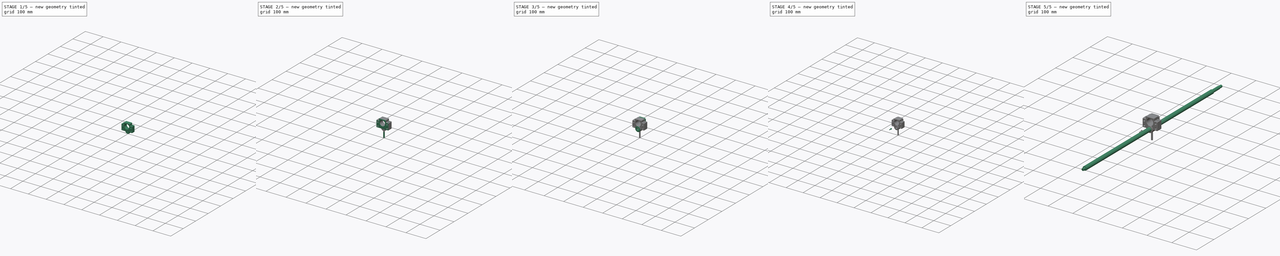
[diagram: build sequence overview — one tinted view per stage of 5, left to right]
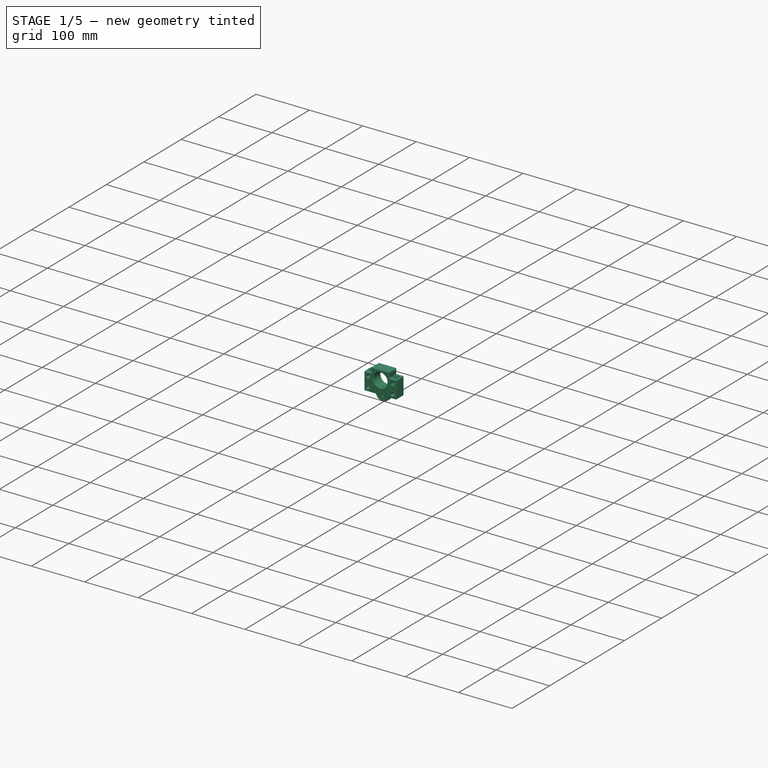
[diagram: stage 1 of 5 — iso view after this stage's code; geometry added in this stage tinted green]
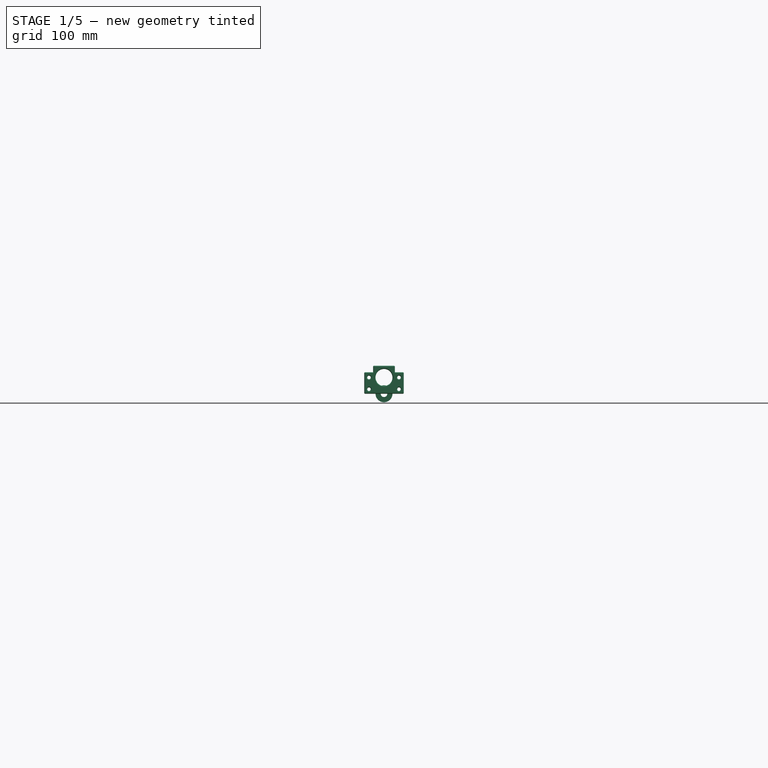
[diagram: stage 1 of 5 — front view after this stage's code; geometry added in this stage tinted green]
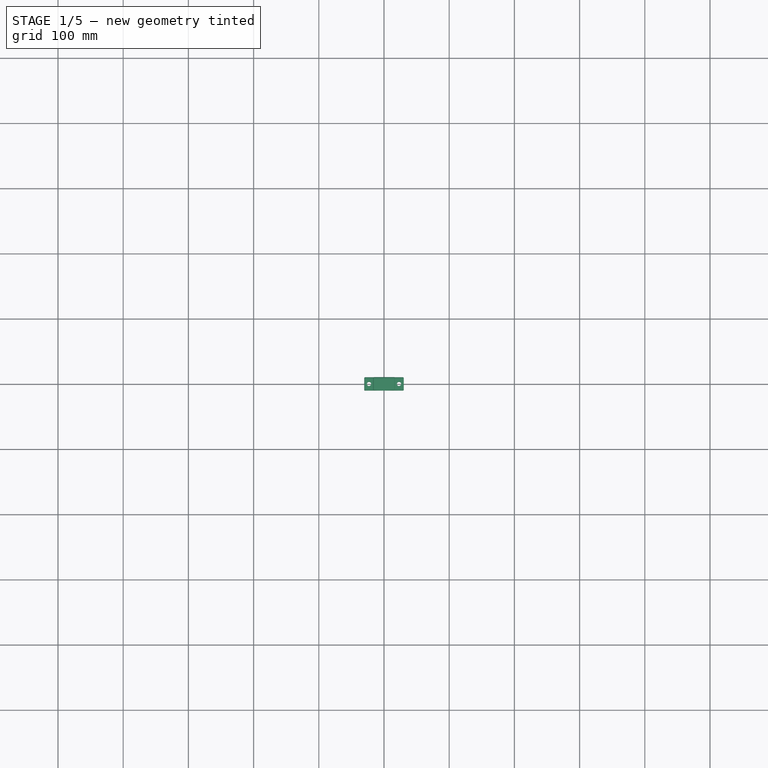
[diagram: stage 1 of 5 — top view after this stage's code; geometry added in this stage tinted green]
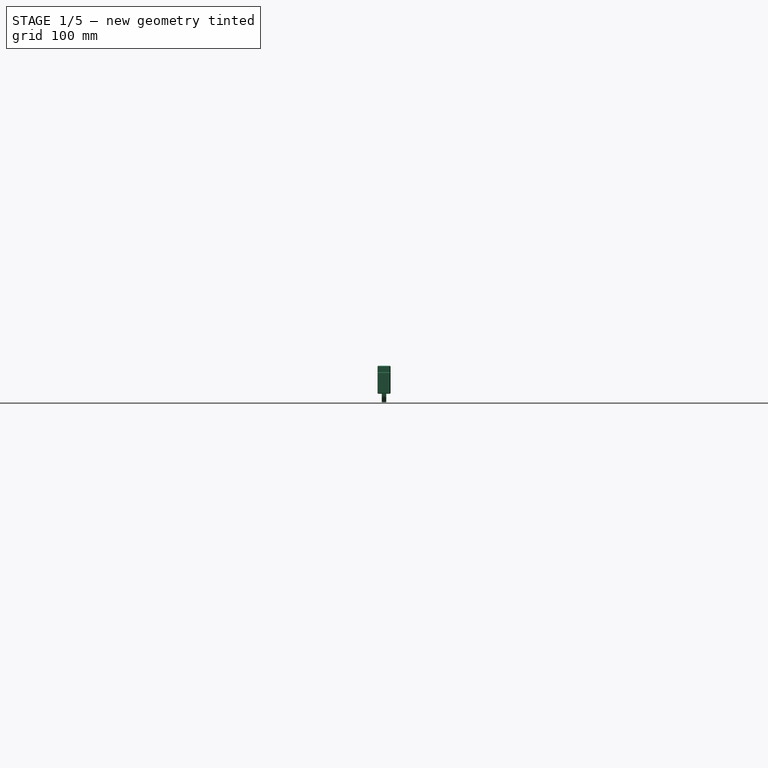
[diagram: stage 1 of 5 — right view after this stage's code; geometry added in this stage tinted green]
FCSTD DOCUMENT  (FreeCAD 2021.614R24301 +3747 (Git))
Label: Ballscrew
License: Creative Commons Attribution
LicenseURL: http://creativecommons.org/licenses/by/4.0/
objects: App::FeaturePython×113, Part::FeaturePython×104, App::Link×20, App::LinkElement×18, Sketcher::SketchObject×14, PartDesign::Chamfer×10, PartDesign::Body×8, PartDesign::Pad×5, PartDesign::Revolution×5, PartDesign::Hole×3, PartDesign::Line×3, App::DocumentObjectGroup×3, PartDesign::Pocket×2, PartDesign::Mirrored×2
note: 205 computed .brp shape members not serialized (recipe doc carries the construction recipe); baked Part::Feature solids carry a one-line shape summary decoded from their .brp

FEATURE [Sketcher::SketchObject] Sketch
  FullyConstrained = true
  MapMode = 5
  Placement = pos=(0,0,0) rot=(1,0,0;1.5708rad)
  Support = -> [XZ_Plane]
  sketch-geometry (18):
    g0: LineSegment StartX=-30.25 StartY=33 StartZ=0 EndX=-16.75 EndY=33 EndZ=0
    g1: LineSegment StartX=30.25 StartY=33 StartZ=0 EndX=30.25 EndY=0 EndZ=0
    g2: LineSegment StartX=30.25 StartY=0 StartZ=0 EndX=-30.25 EndY=0 EndZ=0
    g3: LineSegment StartX=-30.25 StartY=0 StartZ=0 EndX=-30.25 EndY=33 EndZ=0
    g4: LineSegment StartX=-16.75 StartY=43 StartZ=0 EndX=16.75 EndY=43 EndZ=0
    g5: LineSegment StartX=16.75 StartY=43 StartZ=0 EndX=16.75 EndY=33 EndZ=0
    g6: LineSegment StartX=-16.75 StartY=33 StartZ=0 EndX=-16.75 EndY=43 EndZ=0
    g7: Circle CenterX=-23 CenterY=25 CenterZ=0 NormalX=0 NormalY=0 NormalZ=1 AngleXU=0 Radius=2.75
    g8: Circle CenterX=-23 CenterY=7 CenterZ=0 NormalX=0 NormalY=0 NormalZ=1 AngleXU=0 Radius=2.75
    g9: Circle CenterX=23 CenterY=25 CenterZ=0 NormalX=0 NormalY=0 NormalZ=1 AngleXU=0 Radius=2.75
    g10: Circle CenterX=23 CenterY=7 CenterZ=0 NormalX=0 NormalY=0 NormalZ=1 AngleXU=0 Radius=2.75
    g11: LineSegment [constr] StartX=-23 StartY=25 StartZ=0 EndX=-23 EndY=7 EndZ=0
    g12: LineSegment [constr] StartX=23 StartY=25 StartZ=0 EndX=23 EndY=7 EndZ=0
    g13: LineSegment StartX=16.75 StartY=33 StartZ=0 EndX=30.25 EndY=33 EndZ=0
    g14: GeomPoint [constr] X=0 Y=43 Z=0
    g15: Circle CenterX=0 CenterY=25 CenterZ=0 NormalX=0 NormalY=0 NormalZ=1 AngleXU=0 Radius=13
    g16: GeomPoint [constr] X=0 Y=0 Z=0
    g17: GeomPoint [constr] X=0 Y=7 Z=0
  constraints (44):
    c: Coincident(g13,g1)
    c: Coincident(g1,g2)
    c: Coincident(g2,g3)
    c: Coincident(g3,g0)
    c: Horizontal(g0)
    c: Horizontal(g2)
    c: Vertical(g1)
    c: Vertical(g3)
    c: Coincident(g4,g5)
    c: Coincident(g6,g4)
    c: Horizontal(g4)
    c: Vertical(g5)
    c: Vertical(g6)
    c: Vertical(g8,g7)
    c: Vertical(g9,g10)
    c: Horizontal(g7,g9)
    c: Coincident(g11,g7)
    c: Coincident(g11,g8)
    c: Coincident(g12,g9)
    c: Coincident(g12,g10)
    c: Equal(g11,g12)
    c: Coincident(g13,g5)
    c: Tangent(g0,g13)
    c: Equal(g10,g9)
    c: Equal(g9,g7)
    c: Equal(g7,g8)
    c: PointOnObject(g14,g-2)
    c: Symmetric(g4,g4,g14)
    c: DistanceX(g2,g2) = 60.5
    c: DistanceX(g8,g10) = 46
    c: DistanceX(g4,g4) = 33.5
    c: DistanceY(g1,g4) = 43
    c: DistanceY(g1,g1) = 33
    c: PointOnObject(g15,g-2)
    c: DistanceY(g1,g15) = 25
    c: Horizontal(g15,g7)
    c: DistanceY(g11,g11) = 18
    c: Diameter(g7) = 5.5
    c: Symmetric(g2,g1,g16)
    c: Coincident(g6,g0)
    c: Coincident(g16,g-1)
    c: PointOnObject(g17,g-2)
    c: Symmetric(g8,g10,g17)
    c: Diameter(g15) = 26
FEATURE [PartDesign::Pad] Pad
  ClaimChildren = false
  Direction = (1,1,1)
  Fit = 0
  FitJoin = 0
  InnerFit = 0
  InnerFitJoin = 0
  InnerTaperAngle = 0
  InnerTaperAngleRev = 0
  Length = 20
  Length2 = 100
  Linearize = true
  Midplane = true
  NewSolid = false
  Placement = pos=(0,0,0) rot=(1,0,0;1.5708rad)
  Profile = -> Sketch
  Refine = true
  Suppress = false
  Type = 0
FEATURE [Sketcher::SketchObject] Sketch001
  FullyConstrained = true
  MapMode = 5
  Placement = pos=(0,0,0) rot=(1,0,0;3.14159rad)
  Support = -> [Pad]
  sketch-geometry (1):
    g0: Circle CenterX=-23 CenterY=0 CenterZ=0 NormalX=0 NormalY=0 NormalZ=1 AngleXU=0 Radius=3.3
  constraints (3):
    c: PointOnObject(g0,g-1)
    c: Diameter(g0) = 6.6
    c: DistanceX(g0,g-1) = 23
FEATURE [PartDesign::Pocket] Pocket
  BaseFeature = -> Pad
  ClaimChildren = false
  Fit = 0
  FitJoin = 0
  InnerFit = 0
  InnerFitJoin = 0
  InnerTaperAngle = 0
  InnerTaperAngleRev = 0
  Length = 5
  Length2 = 100
  Linearize = true
  NewSolid = false
  Placement = pos=(0,0,0) rot=(1,0,0;1.5708rad)
  Profile = -> Sketch001
  Refine = true
  Suppress = false
  Type = 1
FEATURE [PartDesign::Hole] Hole
  BaseFeature = -> Pocket
  ClaimChildren = false
  CustomThreadClearance = 0
  Depth = 25
  DepthType = 1
  Diameter = 6.6
  DrillForDepth = false
  DrillPoint = 1
  DrillPointAngle = 118
  Fit = 0
  FitJoin = 0
  HoleCutCountersinkAngle = 90
  HoleCutCustomValues = false
  HoleCutDepth = 1.5
  HoleCutDiameter = 10.8
  HoleCutType = 1
  InnerFit = 0
  InnerFitJoin = 0
  ModelThread = false
  NewSolid = false
  Placement = pos=(0,0,0) rot=(1,0,0;1.5708rad)
  Profile = -> Pocket [Edge5]
  Refine = true
  Suppress = false
  Tapered = false
  TaperedAngle = 90
  ThreadClass = 0
  ThreadDepth = 154.49
  ThreadDepthType = 0
  ThreadDirection = 0
  ThreadFit = 0
  ThreadSize = 0
  ThreadType = 0
  Threaded = false
  UseCustomThreadClearance = false
FEATURE [PartDesign::Mirrored] Mirrored
  BaseFeature = -> Hole
  CopyShape = false
  MirrorPlane = -> YZ_Plane
  NewSolid = false
  OriginalSubs = -> [Hole]
  Originals = -> [Hole]
  ParallelTransform = true
  Placement = pos=(0,0,0) rot=(1,0,0;1.5708rad)
  Refine = true
  SubTransform = true
  Suppress = false
  _Version = 1
FEATURE [PartDesign::Chamfer] Chamfer
  Angle = 45
  Base = -> Mirrored [Edge31,Edge37,Edge39,Edge34,Edge3,Edge23,Edge22,Edge21,Edge24,Edge25,Edge27,Edge29,Edge30,Edge28,Edge8,Edge6,Edge7,Edge2,Edge9,Edge1,Edge12,Edge11,Edge14,Edge17,Edge19,Edge18,Edge16,Edge15,Edge26,Edge36,Edge35,Edge10,Edge20,Edge13]
  BaseFeature = -> Mirrored
  ChamferType = 0
  FlipDirection = false
  NewSolid = false
  Placement = pos=(0,0,0) rot=(1,0,0;1.5708rad)
  Refine = true
  Size = 1
  Size2 = 1
  SupportTransform = false
  Suppress = false
FEATURE [PartDesign::Body] Body  label="BF12"
  AutoGroupSolids = false
  ExportMode = 0
  Group = -> [Sketch,Pad,Sketch001,Pocket,Hole,Mirrored,Chamfer]
  Origin = -> Origin
  Placement = pos=(0,-142,-24) rot=(0,0,1;0rad)
  Tip = -> Chamfer
  _ExportChildren = -> [Pad,Hole,Mirrored,Chamfer]
  _GroupVersion = 1
FEATURE [Sketcher::SketchObject] Sketch002
  FullyConstrained = true
  MapMode = 5
  Placement = pos=(0,0,0) rot=(0.57735,0.57735,0.57735;2.0944rad)
  Support = -> [YZ_Plane001]
  sketch-geometry (21):
    g0: LineSegment StartX=-3.5 StartY=13 StartZ=0 EndX=3.5 EndY=13 EndZ=0
    g1: LineSegment StartX=3.5 StartY=13 StartZ=0 EndX=3.5 EndY=11 EndZ=0
    g2: LineSegment StartX=3.5 StartY=5 StartZ=0 EndX=-3.5 EndY=5 EndZ=0
    g3: LineSegment StartX=-3.5 StartY=5 StartZ=0 EndX=-3.5 EndY=7 EndZ=0
    g4: LineSegment StartX=-3.5 StartY=11 StartZ=0 EndX=-2.5 EndY=11 EndZ=0
    g5: LineSegment StartX=-2.5 StartY=11 StartZ=0 EndX=-2.5 EndY=10.5 EndZ=0
    g6: LineSegment StartX=-2.5 StartY=10.5 StartZ=0 EndX=-3 EndY=10.5 EndZ=0
    g7: LineSegment StartX=-3 StartY=10.5 StartZ=0 EndX=-3 EndY=7.5 EndZ=0
    g8: LineSegment StartX=-3 StartY=7.5 StartZ=0 EndX=-2.5 EndY=7.5 EndZ=0
    g9: LineSegment StartX=-2.5 StartY=7.5 StartZ=0 EndX=-2.5 EndY=7 EndZ=0
    g10: LineSegment StartX=-2.5 StartY=7 StartZ=0 EndX=-3.5 EndY=7 EndZ=0
    g11: LineSegment StartX=-3.5 StartY=11 StartZ=0 EndX=-3.5 EndY=13 EndZ=0
    g12: LineSegment StartX=3.5 StartY=11 StartZ=0 EndX=2.5 EndY=11 EndZ=0
    g13: LineSegment StartX=2.5 StartY=11 StartZ=0 EndX=2.5 EndY=10.5 EndZ=0
    g14: LineSegment StartX=2.5 StartY=10.5 StartZ=0 EndX=3 EndY=10.5 EndZ=0
    g15: LineSegment StartX=3 StartY=10.5 StartZ=0 EndX=3 EndY=7.5 EndZ=0
    g16: LineSegment StartX=3 StartY=7.5 StartZ=0 EndX=2.5 EndY=7.5 EndZ=0
    g17: LineSegment StartX=2.5 StartY=7.5 StartZ=0 EndX=2.5 EndY=7 EndZ=0
    g18: LineSegment StartX=2.5 StartY=7 StartZ=0 EndX=3.5 EndY=7 EndZ=0
    g19: LineSegment StartX=3.5 StartY=7 StartZ=0 EndX=3.5 EndY=5 EndZ=0
    g20: GeomPoint [constr] X=0 Y=5 Z=0
  constraints (59):
    c: Coincident(g0,g1)
    c: Coincident(g19,g2)
    c: Coincident(g2,g3)
    c: Coincident(g11,g0)
    c: Horizontal(g0)
    c: Horizontal(g2)
    c: Vertical(g1)
    c: Vertical(g3)
    c: DistanceX(g2,g2) = 7
    c: DistanceY(g-1,g0) = 13
    c: Horizontal(g4)
    c: Coincident(g4,g5)
    c: Coincident(g5,g6)
    c: Coincident(g6,g7)
    c: Vertical(g7)
    c: Coincident(g7,g8)
    c: Horizontal(g8)
    c: Coincident(g8,g9)
    c: Vertical(g9)
    c: Coincident(g9,g10)
    c: Horizontal(g10)
    c: Coincident(g3,g10)
    c: Coincident(g11,g4)
    c: Tangent(g3,g11)
    c: Equal(g8,g6)
    c: Horizontal(g6)
    c: Vertical(g5)
    c: Equal(g5,g9)
    c: DistanceX(g6,g6) = 0.5
    c: DistanceX(g4,g4) = 1
    c: Equal(g3,g11)
    c: DistanceY(g11,g11) = 2
    c: DistanceY(g5,g5) = 0.5
    c: Horizontal(g12)
    c: Coincident(g12,g13)
    c: Vertical(g13)
    c: Coincident(g13,g14)
    c: Coincident(g14,g15)
    c: Vertical(g15)
    c: Coincident(g15,g16)
    c: Horizontal(g16)
    c: Coincident(g16,g17)
    c: Vertical(g17)
    c: Coincident(g17,g18)
    c: Horizontal(g18)
    c: Coincident(g1,g12)
    c: Coincident(g19,g18)
    c: Tangent(g1,g19)
    c: Equal(g12,g4)
    c: Equal(g4,g18)
    c: Equal(g16,g14)
    c: Equal(g14,g6)
    c: Equal(g13,g17)
    c: Equal(g17,g9)
    c: Horizontal(g17,g9)
    c: Horizontal(g12,g4)
    c: PointOnObject(g20,g-2)
    c: Symmetric(g2,g2,g20)
    c: DistanceY(g-1,g2) = 5
FEATURE [PartDesign::Revolution] Revolution
  Angle = 360
  Axis = (1e-16,1,-1e-16)
  Base = (0,0,0)
  ClaimChildren = false
  Fit = 0
  FitJoin = 0
  InnerFit = 0
  InnerFitJoin = 0
  NewSolid = false
  Placement = pos=(0,0,0) rot=(0.57735,0.57735,0.57735;2.0944rad)
  Profile = -> Sketch002
  ReferenceAxis = -> Y_Axis001
  Refine = true
  Suppress = false
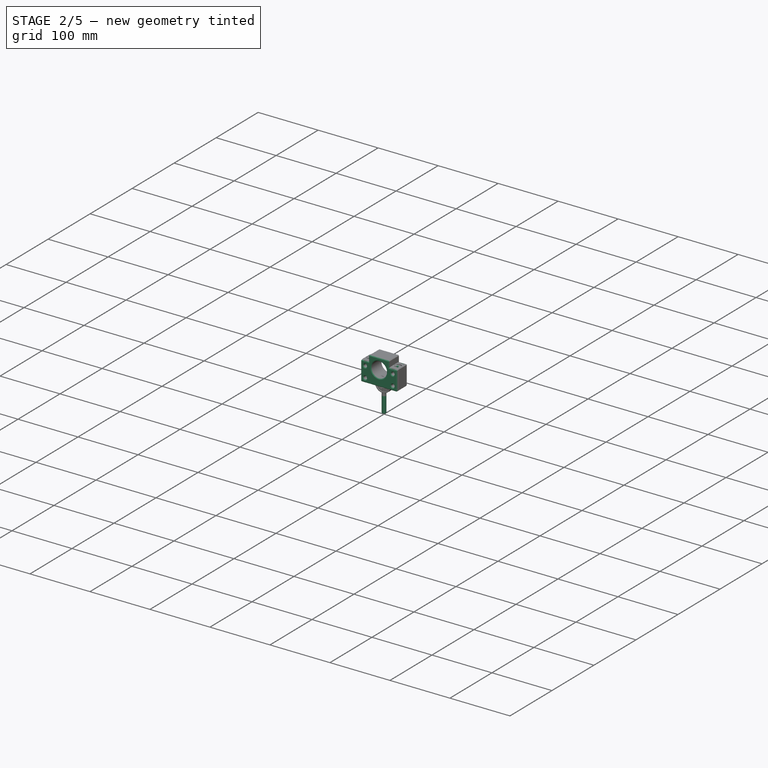
[diagram: stage 2 of 5 — iso view after this stage's code; geometry added in this stage tinted green]
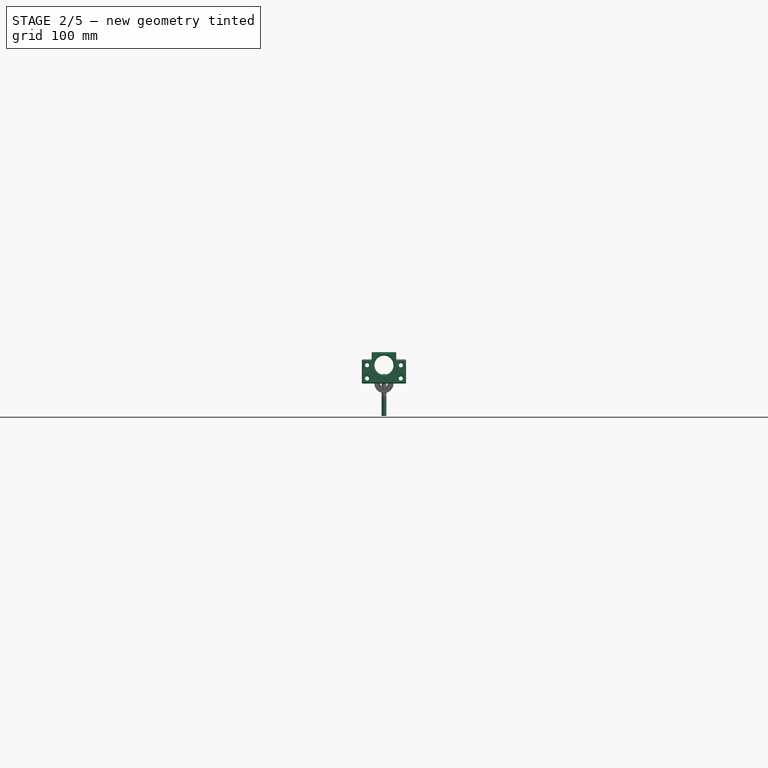
[diagram: stage 2 of 5 — front view after this stage's code; geometry added in this stage tinted green]
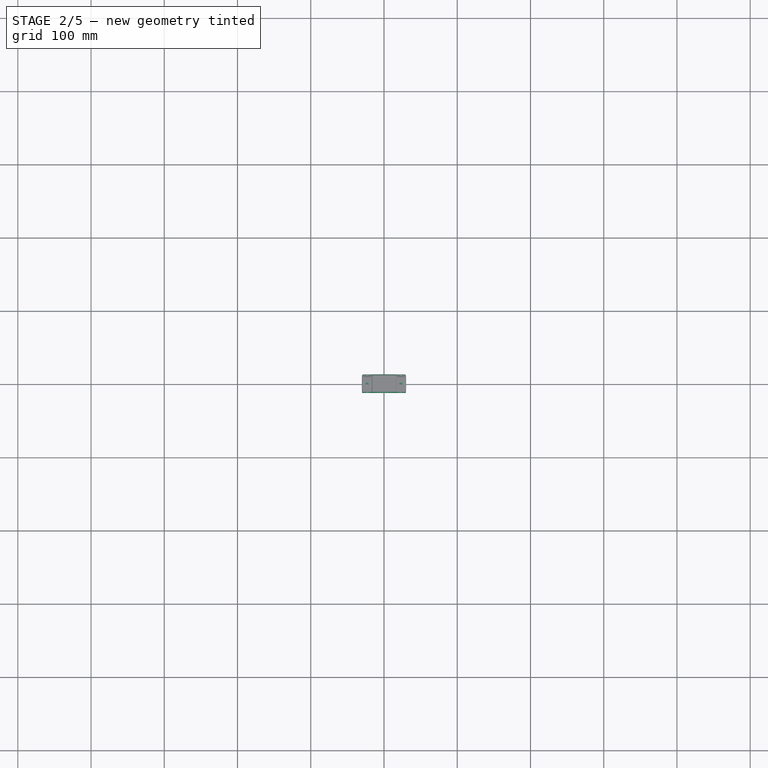
[diagram: stage 2 of 5 — top view after this stage's code; geometry added in this stage tinted green]
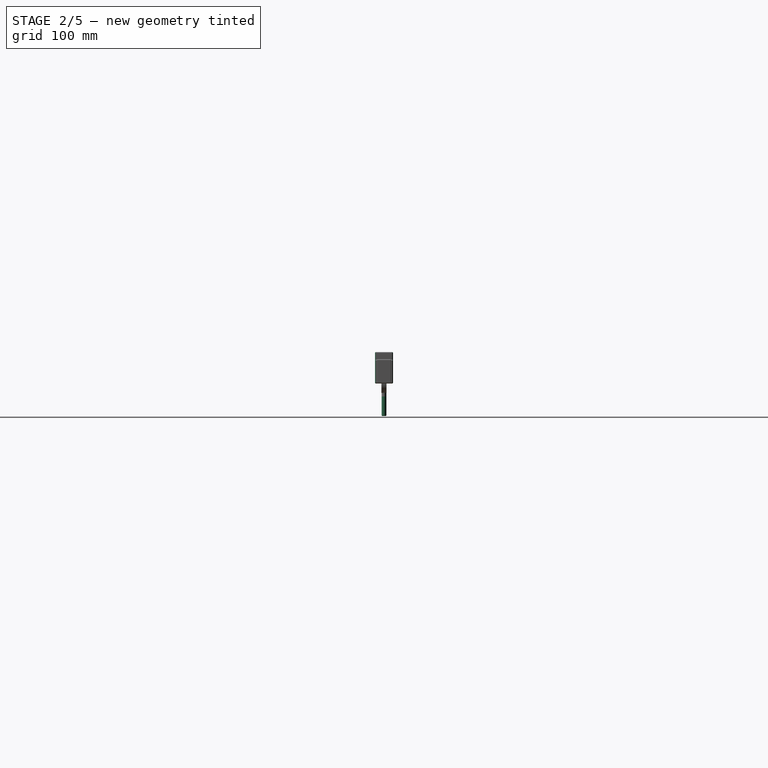
[diagram: stage 2 of 5 — right view after this stage's code; geometry added in this stage tinted green]
FEATURE [PartDesign::Chamfer] Chamfer001
  Angle = 45
  Base = -> Revolution [Edge2,Edge3,Edge18,Edge17,Edge15,Edge5,Edge1,Edge20]
  BaseFeature = -> Revolution
  ChamferType = 0
  FlipDirection = false
  NewSolid = false
  Placement = pos=(0,0,0) rot=(0.57735,0.57735,0.57735;2.0944rad)
  Refine = true
  Size = 0.3
  Size2 = 1
  SupportTransform = false
  Suppress = false
FEATURE [PartDesign::Body] Body001  label="6000Z"
  AutoGroupSolids = false
  ExportMode = 0
  Group = -> [Sketch002,Revolution,Chamfer001]
  Origin = -> Origin001
  Placement = pos=(0,-165,0) rot=(0,0,1;0rad)
  Tip = -> Chamfer001
  _ExportChildren = -> [Revolution,Chamfer001]
  _GroupVersion = 1
FEATURE [App::Link] Link  label="Link(6000Z)"
  AutoLinkLabel = true
  LinkPlacement = pos=(-1.8e-15,-7.1e-15,25) rot=(0,1,0;1.5708rad)
  LinkedObject = -> Body001
  Placement = pos=(-1.8e-15,-7.1e-15,25) rot=(0,1,0;1.5708rad)
  SyncGroupVisibility = false
  _LinkVersion = 1
FEATURE [App::Link] Link001  label="Link001(BF12)"
  AutoLinkLabel = true
  LinkedObject = -> Body
  SyncGroupVisibility = false
  _LinkVersion = 1
FEATURE [Part::FeaturePython] Parts  # WARN: FeaturePython — macro-defined, semantics opaque (R4)
  Group = -> [Link,Link001]
  GroupMode = 0
  _LinkVersion = 1
FEATURE [Sketcher::SketchObject] Sketch003
  FullyConstrained = true
  MapMode = 5
  Placement = pos=(0,0,0) rot=(1,0,0;1.5708rad)
  Support = -> [XZ_Plane002]
  sketch-geometry (14):
    g0: LineSegment StartX=-30 StartY=32.5 StartZ=0 EndX=-16.75 EndY=32.5 EndZ=0
    g1: LineSegment StartX=30 StartY=32.5 StartZ=0 EndX=30 EndY=0 EndZ=0
    g2: LineSegment StartX=30 StartY=0 StartZ=0 EndX=-30 EndY=0 EndZ=0
    g3: LineSegment StartX=-30 StartY=0 StartZ=0 EndX=-30 EndY=32.5 EndZ=0
    g4: LineSegment StartX=-16.75 StartY=43 StartZ=0 EndX=16.75 EndY=43 EndZ=0
    g5: LineSegment StartX=16.75 StartY=43 StartZ=0 EndX=16.75 EndY=32.5 EndZ=0
    g6: LineSegment StartX=-16.75 StartY=32.5 StartZ=0 EndX=-16.75 EndY=43 EndZ=0
    g7: Circle CenterX=0 CenterY=25 CenterZ=0 NormalX=0 NormalY=0 NormalZ=1 AngleXU=0 Radius=13
    g8: Circle CenterX=-23 CenterY=25 CenterZ=0 NormalX=0 NormalY=0 NormalZ=1 AngleXU=0 Radius=2.75
    g9: Circle CenterX=-23 CenterY=7 CenterZ=0 NormalX=0 NormalY=0 NormalZ=1 AngleXU=0 Radius=2.75
    g10: Circle CenterX=23 CenterY=25 CenterZ=0 NormalX=0 NormalY=0 NormalZ=1 AngleXU=0 Radius=2.75
    g11: Circle CenterX=23 CenterY=7 CenterZ=0 NormalX=0 NormalY=0 NormalZ=1 AngleXU=0 Radius=2.75
    g12: LineSegment StartX=16.75 StartY=32.5 StartZ=0 EndX=30 EndY=32.5 EndZ=0
    g13: GeomPoint [constr] X=0 Y=0 Z=0
  constraints (37):
    c: Coincident(g12,g1)
    c: Coincident(g1,g2)
    c: Coincident(g2,g3)
    c: Coincident(g3,g0)
    c: Horizontal(g0)
    c: Horizontal(g2)
    c: Vertical(g1)
    c: Vertical(g3)
    c: Coincident(g4,g5)
    c: Coincident(g6,g4)
    c: Horizontal(g4)
    c: Vertical(g5)
    c: Vertical(g6)
    c: PointOnObject(g7,g-2)
    c: Vertical(g11,g10)
    c: Vertical(g8,g9)
    c: Horizontal(g8,g10)
    c: Horizontal(g7,g8)
    c: Tangent(g0,g12)
    c: Coincident(g6,g0)
    c: Coincident(g5,g12)
    c: Equal(g12,g0)
    c: Symmetric(g1,g2,g13)
    c: DistanceX(g2,g2) = 60
    c: DistanceX(g4,g4) = 33.5
    c: DistanceY(g1,g1) = 32.5
    c: DistanceY(g1,g4) = 43
    c: DistanceY(g11,g10) = 18
    c: DistanceX(g9,g11) = 46
    c: DistanceY(g1,g10) = 25
    c: Symmetric(g11,g9,g-2)
    c: Equal(g8,g10)
    c: Equal(g10,g11)
    c: Equal(g11,g9)
    c: Diameter(g8) = 5.5
    c: Diameter(g7) = 26
    c: Coincident(g13,g-1)
FEATURE [PartDesign::Pad] Pad001
  ClaimChildren = false
  Direction = (1,1,1)
  Fit = 0
  FitJoin = 0
  InnerFit = 0
  InnerFitJoin = 0
  InnerTaperAngle = 0
  InnerTaperAngleRev = 0
  Length = 24.7
  Length2 = 100
  Linearize = true
  Midplane = true
  NewSolid = false
  Placement = pos=(0,0,0) rot=(1,0,0;1.5708rad)
  Profile = -> Sketch003
  Refine = true
  Suppress = false
  Type = 0
FEATURE [Sketcher::SketchObject] Sketch004
  FullyConstrained = true
  MapMode = 5
  Placement = pos=(0,1.43e-14,32.5) rot=(0,0,1;3.14159rad)
  Support = -> [Pad001]
  sketch-geometry (2):
    g0: Circle CenterX=-23 CenterY=6.5 CenterZ=0 NormalX=0 NormalY=0 NormalZ=1 AngleXU=0 Radius=3.3
    g1: Circle CenterX=-23 CenterY=-6.5 CenterZ=0 NormalX=0 NormalY=0 NormalZ=1 AngleXU=0 Radius=3.3
  constraints (5):
    c: Equal(g0,g1)
    c: DistanceX(g0,g-1) = 23
    c: Diameter(g0) = 6.6
    c: DistanceY(g1,g0) = 13
    c: Symmetric(g1,g0,g-1)
FEATURE [PartDesign::Chamfer] Chamfer002
  Angle = 45
  Base = -> Pad001 [Edge8,Edge5,Edge9,Edge3,Edge6,Edge12,Edge15,Edge14,Edge18,Edge35,Edge29,Edge32,Edge38,Edge23,Edge21,Edge19,Edge16,Edge13,Edge10,Edge7,Edge4,Edge24,Edge27,Edge39,Edge33,Edge22,Edge17,Edge20,Edge1,Edge36,Edge30]
  BaseFeature = -> Pad001
  ChamferType = 0
  FlipDirection = false
  NewSolid = false
  Placement = pos=(0,0,0) rot=(1,0,0;1.5708rad)
  Refine = true
  Size = 1
  Size2 = 1
  SupportTransform = false
  Suppress = false
FEATURE [PartDesign::Hole] Hole001
  BaseFeature = -> Chamfer002
  ClaimChildren = false
  CustomThreadClearance = 0
  Depth = 25
  DepthType = 1
  Diameter = 6.6
  DrillForDepth = false
  DrillPoint = 1
  DrillPointAngle = 118
  Fit = 0
  FitJoin = 0
  HoleCutCountersinkAngle = 90
  HoleCutCustomValues = false
  HoleCutDepth = 1.5
  HoleCutDiameter = 10.8
  HoleCutType = 1
  InnerFit = 0
  InnerFitJoin = 0
  ModelThread = false
  NewSolid = false
  Placement = pos=(0,0,0) rot=(1,0,0;1.5708rad)
  Profile = -> Sketch004
  Refine = true
  Suppress = false
  Tapered = false
  TaperedAngle = 90
  ThreadClass = 0
  ThreadDepth = 157.24
  ThreadDepthType = 0
  ThreadDirection = 0
  ThreadFit = 0
  ThreadSize = 0
  ThreadType = 0
  Threaded = false
  UseCustomThreadClearance = false
FEATURE [PartDesign::Mirrored] Mirrored001
  BaseFeature = -> Hole001
  CopyShape = false
  MirrorPlane = -> YZ_Plane002
  NewSolid = false
  OriginalSubs = -> [Hole001]
  Originals = -> [Hole001]
  ParallelTransform = true
  Placement = pos=(0,0,0) rot=(1,0,0;1.5708rad)
  Refine = true
  SubTransform = true
  Suppress = false
  _Version = 1
FEATURE [PartDesign::Line] DatumLine002
  AttacherType = Attacher::AttachEngineLine
  Length = 800
  MapMode = 19
  MinimumLength = 10
  Placement = pos=(3.84e-14,346,-1.146e-13) rot=(-0.57735,-0.57735,-0.57735;2.0944rad)
  ResizeMode = 0
  Support = -> [Chamfer009]
FEATURE [PartDesign::Body] Body007  label="RM1605-800"
  AutoGroupSolids = false
  ExportMode = 0
  Group = -> [Sketch013,Revolution004,Chamfer009,DatumLine002]
  Origin = -> Origin007
  Placement = pos=(-179,0,0) rot=(0,0,1;0rad)
  Tip = -> Chamfer009
  _ExportChildren = -> [Revolution004,Chamfer009,DatumLine002]
  _GroupVersion = 1
FEATURE [App::Link] Link014  label="Link014(RM1605-800)"
  AutoLinkLabel = true
  LinkPlacement = pos=(-0.0269038,-415,25.2769) rot=(0,-1,0;4.71239rad)
  LinkedObject = -> Body007
  Placement = pos=(-0.0269038,-415,25.2769) rot=(0,-1,0;4.71239rad)
  SyncGroupVisibility = false
  _LinkVersion = 1
FEATURE [App::Link] Link015  label="Link015(BK12-Assembly)"
  AutoLinkLabel = true
  LinkPlacement = pos=(-13.0269,-1.14441e-05,25.2769) rot=(0,1,0;1.5708rad)
  LinkedObject = -> Assembly001
  Placement = pos=(-13.0269,-1.14441e-05,25.2769) rot=(0,1,0;1.5708rad)
  SyncGroupVisibility = false
  _LinkVersion = 1
FEATURE [App::Link] Link016  label="Link016(BF12-Assembly)"
  AutoLinkLabel = true
  LinkPlacement = pos=(-0.026908,-808.1,0.276904) rot=(0,1,0;0rad)
  LinkedObject = -> Assembly
  Placement = pos=(-0.026908,-808.1,0.276904) rot=(0,1,0;0rad)
  SyncGroupVisibility = false
  _LinkVersion = 1
FEATURE [Part::FeaturePython] Screw001  label="1/4inx1 3/4in-Screw"  # Fasteners workbench fastener (typed FeaturePython)
  diameter = 11
  invert = false
  length = 11
  lengthCustom = 44.45
  matchOuter = false
  offset = 0
  thread = false
  type = 4
FEATURE [App::DocumentObjectGroup] Group  label="Components"
  ExportMode = 1
  Group = -> [Body,Body001,Body002,Body003,Body004,Body005,Body006,Body007,Screw001]
  _GroupVersion = 1
FEATURE [App::LinkElement] Link017_i0
  LinkPlacement = pos=(-51.5,23.0269,-27.2231) rot=(0,0,-1;1.5708rad)
  LinkedObject = -> Screw001
  Placement = pos=(-51.5,23.0269,-27.2231) rot=(0,0,-1;1.5708rad)
  _LinkVersion = 0
FEATURE [App::LinkElement] Link017_i1
  LinkPlacement = pos=(-51.5,-22.9731,-27.2231) rot=(0,0,1;1.5708rad)
  LinkedObject = -> Screw001
  Placement = pos=(-51.5,-22.9731,-27.2231) rot=(0,0,1;1.5708rad)
  _LinkVersion = 0
FEATURE [App::LinkElement] Link017_i2
  LinkPlacement = pos=(157.5,23.0269,-27.7231) rot=(0,0,1;1.5708rad)
  LinkedObject = -> Screw001
  Placement = pos=(157.5,23.0269,-27.7231) rot=(0,0,1;1.5708rad)
  _LinkVersion = 0
FEATURE [App::LinkElement] Link017_i3
  LinkPlacement = pos=(144.5,23.0269,-27.7231) rot=(0,0,1;1.5708rad)
  LinkedObject = -> Screw001
  Placement = pos=(144.5,23.0269,-27.7231) rot=(0,0,1;1.5708rad)
  _LinkVersion = 0
FEATURE [App::LinkElement] Link017_i4
  LinkPlacement = pos=(157.5,-22.9731,-27.7231) rot=(0,0,-1;1.5708rad)
  LinkedObject = -> Screw001
  Placement = pos=(157.5,-22.9731,-27.7231) rot=(0,0,-1;1.5708rad)
  _LinkVersion = 0
FEATURE [App::LinkElement] Link017_i5
  LinkPlacement = pos=(144.5,-22.9731,-27.7231) rot=(0,0,-1;1.5708rad)
  LinkedObject = -> Screw001
  Placement = pos=(144.5,-22.9731,-27.7231) rot=(0,0,-1;1.5708rad)
  _LinkVersion = 0
FEATURE [App::Link] Link017  label="1/4inx1 3/4in-Screw 6ct"
  AutoLinkLabel = true
  ElementCount = 6
  ElementList = -> [Link017_i0,Link017_i1,Link017_i2,Link017_i3,Link017_i4,Link017_i5]
  LinkPlacement = pos=(4.05312e-06,4.832e-13,34) rot=(0,0,1;1.5708rad)
  LinkedObject = -> Screw001
  Placement = pos=(4.05312e-06,4.832e-13,34) rot=(0,0,1;1.5708rad)
  SyncGroupVisibility = false
  _LinkVersion = 1
FEATURE [Part::FeaturePython] Parts002  # WARN: FeaturePython — macro-defined, semantics opaque (R4)
  Group = -> [Link008,Link009,Link010,Link017]
  GroupMode = 0
  _LinkVersion = 1
FEATURE [App::LinkElement] Link018_i0
  LinkPlacement = pos=(-3.12843e-05,40,-45.5) rot=(0,0,1;1.5708rad)
  LinkedObject = -> Screw001
  Placement = pos=(-3.12843e-05,40,-45.5) rot=(0,0,1;1.5708rad)
  _LinkVersion = 0
FEATURE [App::LinkElement] Link018_i1
  LinkPlacement = pos=(-2.35292e-05,86,-45.5) rot=(0,0,-1;1.5708rad)
  LinkedObject = -> Screw001
  Placement = pos=(-2.35292e-05,86,-45.5) rot=(0,0,-1;1.5708rad)
  _LinkVersion = 0
FEATURE [App::LinkElement] Link018_i2
  LinkPlacement = pos=(495.65,39.9999,-46) rot=(0,0,-1;1.5708rad)
  LinkedObject = -> Screw001
  Placement = pos=(495.65,39.9999,-46) rot=(0,0,-1;1.5708rad)
  _LinkVersion = 0
FEATURE [App::LinkElement] Link018_i3
  LinkPlacement = pos=(508.65,39.9999,-46) rot=(0,0,-1;1.5708rad)
  LinkedObject = -> Screw001
  Placement = pos=(508.65,39.9999,-46) rot=(0,0,-1;1.5708rad)
  _LinkVersion = 0
FEATURE [App::LinkElement] Link018_i4
  LinkPlacement = pos=(495.65,85.9999,-46) rot=(0,0,-1;4.71239rad)
  LinkedObject = -> Screw001
  Placement = pos=(495.65,85.9999,-46) rot=(0,0,-1;4.71239rad)
  _LinkVersion = 0
FEATURE [App::LinkElement] Link018_i5
  LinkPlacement = pos=(508.65,85.9999,-46) rot=(0,0,-1;4.71239rad)
  LinkedObject = -> Screw001
  Placement = pos=(508.65,85.9999,-46) rot=(0,0,-1;4.71239rad)
  _LinkVersion = 0
FEATURE [App::Link] Link018  label="1/4inx1 3/4in-Screw 6ct  "
  AutoLinkLabel = true
  ElementCount = 6
  ElementList = -> [Link018_i0,Link018_i1,Link018_i2,Link018_i3,Link018_i4,Link018_i5]
  LinkPlacement = pos=(63,3.80278e-05,77) rot=(0,0,1;1.5708rad)
  LinkedObject = -> Screw001
  Placement = pos=(63,3.80278e-05,77) rot=(0,0,1;1.5708rad)
  SyncGroupVisibility = false
  _LinkVersion = 1
FEATURE [Part::FeaturePython] Parts003  # WARN: FeaturePython — macro-defined, semantics opaque (R4)
  Group = -> [Link011,Link012,Link013,Link018]
  GroupMode = 0
  _LinkVersion = 1
FEATURE [App::LinkElement] Link019_i0
  LinkPlacement = pos=(808.1,-142.027,-30.2231) rot=(0,0,1;1.5708rad)
  LinkedObject = -> Screw001
  Placement = pos=(808.1,-142.027,-30.2231) rot=(0,0,1;1.5708rad)
  _LinkVersion = 0
FEATURE [App::LinkElement] Link019_i1
  LinkPlacement = pos=(808.1,-96.0268,-30.2231) rot=(0,0,1;4.71239rad)
  LinkedObject = -> Screw001
  Placement = pos=(808.1,-96.0268,-30.2231) rot=(0,0,1;4.71239rad)
  _LinkVersion = 0
FEATURE [App::LinkElement] Link019_i2
  LinkPlacement = pos=(49.5,-142.027,-30.7231) rot=(0,0,1;4.71239rad)
  LinkedObject = -> Screw001
  Placement = pos=(49.5,-142.027,-30.7231) rot=(0,0,1;4.71239rad)
  _LinkVersion = 0
FEATURE [App::LinkElement] Link019_i3
  LinkPlacement = pos=(62.5,-142.027,-30.7231) rot=(0,0,1;4.71239rad)
  LinkedObject = -> Screw001
  Placement = pos=(62.5,-142.027,-30.7231) rot=(0,0,1;4.71239rad)
  _LinkVersion = 0
FEATURE [App::LinkElement] Link019_i4
  LinkPlacement = pos=(49.5,-96.0269,-30.7231) rot=(0,0,1;1.5708rad)
  LinkedObject = -> Screw001
  Placement = pos=(49.5,-96.0269,-30.7231) rot=(0,0,1;1.5708rad)
  _LinkVersion = 0
FEATURE [App::LinkElement] Link019_i5
  LinkPlacement = pos=(62.5,-96.0269,-30.7231) rot=(0,0,1;1.5708rad)
  LinkedObject = -> Screw001
  Placement = pos=(62.5,-96.0269,-30.7231) rot=(0,0,1;1.5708rad)
  _LinkVersion = 0
FEATURE [App::Link] Link019  label="1/4inx1 3/4in-Screw 6ct "
  AutoLinkLabel = true
  ElementCount = 6
  ElementList = -> [Link019_i0,Link019_i1,Link019_i2,Link019_i3,Link019_i4,Link019_i5]
  LinkPlacement = pos=(119,-1.41859e-05,62) rot=(0,0,-1;1.5708rad)
  LinkedObject = -> Screw001
  Placement = pos=(119,-1.41859e-05,62) rot=(0,0,-1;1.5708rad)
  SyncGroupVisibility = false
  _LinkVersion = 1
FEATURE [Part::FeaturePython] Parts004  # WARN: FeaturePython — macro-defined, semantics opaque (R4)
  Group = -> [Link014,Link015,Link016,Link019]
  GroupMode = 0
  _LinkVersion = 1
FEATURE [Part::FeaturePython] Assembly  label="BF12-Assembly"  # WARN: FeaturePython — macro-defined, semantics opaque (R4)
  AutoRelax = true
  BuildShape = 0
  Freeze = false
  Group = -> [Constraints,Elements,Parts]
  Verbose = false
  _LinkVersion = 1
  _SolverType = 1
  _Version = 1
FEATURE [App::FeaturePython] Constraints  # WARN: FeaturePython — macro-defined, semantics opaque (R4)
  Group = -> [Constraint,Constraint001]
  _LinkVersion = 1
  _Version = 1
FEATURE [App::FeaturePython] Elements  # WARN: FeaturePython — macro-defined, semantics opaque (R4)
  Group = -> [_Element,_Element001,_Element002,Element001,Element002,Element018,Element029,Element030]
  _LinkVersion = 1
FEATURE [App::FeaturePython] Constraint  label="Locked"  # WARN: FeaturePython — macro-defined, semantics opaque (R4)
  Disabled = false
  Group = -> [ElementLink]
  _ConstraintType = 0
  _LinkVersion = 1
  _Parent = -> Constraints
FEATURE [App::FeaturePython] ElementLink  label="_Element"  # link proxy (typed FeaturePython)
  LinkTransform = true
  LinkedObject = -> _Element
  _LinkVersion = 1
  _Parent = -> Constraint
FEATURE [Part::FeaturePython] _Element  # link proxy (typed FeaturePython)
  Detach = false
  LinkTransform = true
  LinkedObject = -> Link001 [Chamfer.Face46]
  _LinkVersion = 1
  _Parent = -> Elements
FEATURE [App::FeaturePython] Constraint001  label="Attachment"  # WARN: FeaturePython — macro-defined, semantics opaque (R4)
  Cascade = false
  Disabled = false
  Group = -> [ElementLink001,ElementLink002]
  Multiply = false
  _ConstraintType = 45
  _LinkVersion = 1
  _Parent = -> Constraints
FEATURE [App::FeaturePython] ElementLink001  label="_Element001"  # link proxy (typed FeaturePython)
  LinkTransform = true
  LinkedObject = -> _Element001
  Offset = pos=(0,0,6.5) rot=(1,0,0;3.14159rad)
  Placement = pos=(1.9e-15,13.5,50) rot=(1,0,0;3.14159rad)
  _LinkVersion = 1
  _Parent = -> Constraint001
FEATURE [Part::FeaturePython] _Element001  # link proxy (typed FeaturePython)
  Detach = false
  LinkTransform = true
  LinkedObject = -> Link [Chamfer001.Edge12]
  _LinkVersion = 1
  _Parent = -> Elements
FEATURE [App::FeaturePython] ElementLink002  label="_Element002"  # link proxy (typed FeaturePython)
  LinkTransform = true
  LinkedObject = -> _Element002
  _LinkVersion = 1
  _Parent = -> Constraint001
FEATURE [Part::FeaturePython] _Element002  # link proxy (typed FeaturePython)
  Detach = false
  LinkTransform = true
  LinkedObject = -> Link001 [Chamfer.Edge38]
  _LinkVersion = 1
  _Parent = -> Elements
FEATURE [Part::FeaturePython] Assembly001  label="BK12-Assembly"  # WARN: FeaturePython — macro-defined, semantics opaque (R4)
  AutoRelax = true
  BuildShape = 0
  Freeze = false
  Group = -> [Constraints001,Elements001,Parts001]
  Placement = pos=(-13.0269,-1.14441e-05,25.2769) rot=(0,1,0;1.5708rad)
  Verbose = false
  _LinkVersion = 1
  _SolverType = 1
  _Version = 1
FEATURE [App::FeaturePython] Constraints001  # WARN: FeaturePython — macro-defined, semantics opaque (R4)
  Group = -> [Constraint002,Constraint003,Constraint004,Constraint005,Constraint006,Constraint007,Constraint008]
  _LinkVersion = 1
  _Version = 1
FEATURE [App::FeaturePython] Elements001  # WARN: FeaturePython — macro-defined, semantics opaque (R4)
  Group = -> [_Element003,_Element004,_Element005,_Element006,_Element007,_Element008,_Element009,_Element010,_Element011,_Element012,_Element013,_Element014,_Element015,Element,Element019,Element020,Element021,Element022,Element031,Element032,Element033,Element034]
  _LinkVersion = 1
FEATURE [App::FeaturePython] Constraint002  label="Attachment001"  # WARN: FeaturePython — macro-defined, semantics opaque (R4)
  Cascade = false
  Disabled = false
  Group = -> [ElementLink003,ElementLink004]
  Multiply = false
  _ConstraintType = 45
  _LinkVersion = 1
  _Parent = -> Constraints001
FEATURE [App::FeaturePython] ElementLink003  label="_Element003"  # link proxy (typed FeaturePython)
  LinkTransform = true
  LinkedObject = -> _Element003
  Offset = pos=(0,0,-0.35) rot=(1,0,0;3.14159rad)
  Placement = pos=(1.14e-14,-136.35,8.88e-14) rot=(0,0,1;3.14159rad)
  _LinkVersion = 1
  _Parent = -> Constraint002
FEATURE [Part::FeaturePython] _Element003  # link proxy (typed FeaturePython)
  Detach = false
  LinkTransform = true
  LinkedObject = -> Link002 [Chamfer003.Edge4]
  _LinkVersion = 1
  _Parent = -> Elements001
FEATURE [App::FeaturePython] ElementLink004  label="_Element004"  # link proxy (typed FeaturePython)
  LinkTransform = true
  LinkedObject = -> _Element004
  _LinkVersion = 1
  _Parent = -> Constraint002
FEATURE [Part::FeaturePython] _Element004  # link proxy (typed FeaturePython)
  Detach = false
  LinkTransform = true
  LinkedObject = -> Link003 [Hole002.Edge45]
  _LinkVersion = 1
  _Parent = -> Elements001
FEATURE [App::FeaturePython] Constraint003  label="Attachment002"  # WARN: FeaturePython — macro-defined, semantics opaque (R4)
  Cascade = false
  Disabled = false
  Group = -> [ElementLink005,ElementLink006]
  Multiply = false
  _ConstraintType = 45
  _LinkVersion = 1
  _Parent = -> Constraints001
FEATURE [App::FeaturePython] ElementLink005  label="_Element005"  # link proxy (typed FeaturePython)
  LinkTransform = true
  LinkedObject = -> _Element005
  _LinkVersion = 1
  _Parent = -> Constraint003
FEATURE [Part::FeaturePython] _Element005  # link proxy (typed FeaturePython)
  Detach = false
  LinkTransform = true
  LinkedObject = -> Screw [Edge9]
  _LinkVersion = 1
  _Parent = -> Elements001
FEATURE [App::FeaturePython] ElementLink006  label="_Element006"  # link proxy (typed FeaturePython)
  LinkTransform = true
  LinkedObject = -> _Element006
  _LinkVersion = 1
  _Parent = -> Constraint003
FEATURE [Part::FeaturePython] _Element006  # link proxy (typed FeaturePython)
  Detach = false
  LinkTransform = true
  LinkedObject = -> Link003 [Hole002.Edge229]
  _LinkVersion = 1
  _Parent = -> Elements001
FEATURE [App::FeaturePython] Constraint004  label="Attachment003"  # WARN: FeaturePython — macro-defined, semantics opaque (R4)
  Cascade = false
  Disabled = false
  Group = -> [ElementLink007,ElementLink008]
  Multiply = false
  _ConstraintType = 45
  _LinkVersion = 1
  _Parent = -> Constraints001
FEATURE [App::FeaturePython] ElementLink007  label="_Element007"  # link proxy (typed FeaturePython)
  LinkTransform = true
  LinkedObject = -> _Element007
  _LinkVersion = 1
  _Parent = -> Constraint004
FEATURE [Part::FeaturePython] _Element007  # link proxy (typed FeaturePython)
  Detach = false
  LinkTransform = true
  LinkedObject = -> Link003 [Hole002.Edge231]
  _LinkVersion = 1
  _Parent = -> Elements001
FEATURE [App::FeaturePython] ElementLink008  label="_Element008"  # link proxy (typed FeaturePython)
  LinkTransform = true
  LinkedObject = -> _Element008
  _LinkVersion = 1
  _Parent = -> Constraint004
FEATURE [Part::FeaturePython] _Element008  # link proxy (typed FeaturePython)
  Detach = false
  LinkTransform = true
  LinkedObject = -> Link004 [Edge9]
  _LinkVersion = 1
  _Parent = -> Elements001
FEATURE [App::FeaturePython] Constraint005  label="Attachment004"  # WARN: FeaturePython — macro-defined, semantics opaque (R4)
  Cascade = false
  Disabled = false
  Group = -> [ElementLink009,ElementLink010]
  Multiply = false
  _ConstraintType = 45
  _LinkVersion = 1
  _Parent = -> Constraints001
FEATURE [App::FeaturePython] ElementLink009  label="_Element009"  # link proxy (typed FeaturePython)
  LinkTransform = true
  LinkedObject = -> _Element009
  _LinkVersion = 1
  _Parent = -> Constraint005
FEATURE [Part::FeaturePython] _Element009  # link proxy (typed FeaturePython)
  Detach = false
  LinkTransform = true
  LinkedObject = -> Link003 [Hole002.Edge230]
  _LinkVersion = 1
  _Parent = -> Elements001
FEATURE [App::FeaturePython] ElementLink010  label="_Element010"  # link proxy (typed FeaturePython)
  LinkTransform = true
  LinkedObject = -> _Element010
  _LinkVersion = 1
  _Parent = -> Constraint005
FEATURE [Part::FeaturePython] _Element010  # link proxy (typed FeaturePython)
  Detach = false
  LinkTransform = true
  LinkedObject = -> Link006 [Edge9]
  _LinkVersion = 1
  _Parent = -> Elements001
FEATURE [App::FeaturePython] Constraint006  label="Attachment005"  # WARN: FeaturePython — macro-defined, semantics opaque (R4)
  Cascade = false
  Disabled = false
  Group = -> [ElementLink011,ElementLink012]
  Multiply = false
  _ConstraintType = 45
  _LinkVersion = 1
  _Parent = -> Constraints001
FEATURE [App::FeaturePython] ElementLink011  label="_Element011"  # link proxy (typed FeaturePython)
  LinkTransform = true
  LinkedObject = -> _Element011
  _LinkVersion = 1
  _Parent = -> Constraint006
FEATURE [Part::FeaturePython] _Element011  # link proxy (typed FeaturePython)
  Detach = false
  LinkTransform = true
  LinkedObject = -> Link005 [Edge9]
  _LinkVersion = 1
  _Parent = -> Elements001
FEATURE [App::FeaturePython] ElementLink012  label="_Element012"  # link proxy (typed FeaturePython)
  LinkTransform = true
  LinkedObject = -> _Element012
  _LinkVersion = 1
  _Parent = -> Constraint006
FEATURE [Part::FeaturePython] _Element012  # link proxy (typed FeaturePython)
  Detach = false
  LinkTransform = true
  LinkedObject = -> Link003 [Hole002.Edge228]
  _LinkVersion = 1
  _Parent = -> Elements001
FEATURE [App::FeaturePython] Constraint007  label="Attachment006"  # WARN: FeaturePython — macro-defined, semantics opaque (R4)
  Cascade = false
  Disabled = false
  Group = -> [ElementLink013,ElementLink014]
  Multiply = false
  _ConstraintType = 45
  _LinkVersion = 1
  _Parent = -> Constraints001
FEATURE [App::FeaturePython] ElementLink013  label="_Element013"  # link proxy (typed FeaturePython)
  LinkTransform = true
  LinkedObject = -> _Element013
  Offset = pos=(0,0,0) rot=(1,0,0;3.14159rad)
  Placement = pos=(7.8e-15,-74,3.73e-14) rot=(0,0,1;3.14159rad)
  _LinkVersion = 1
  _Parent = -> Constraint007
FEATURE [Part::FeaturePython] _Element013  # link proxy (typed FeaturePython)
  Detach = false
  LinkTransform = true
  LinkedObject = -> Link007 [Chamfer005.Edge6]
  _LinkVersion = 1
  _Parent = -> Elements001
FEATURE [App::FeaturePython] ElementLink014  label="_Element014"  # link proxy (typed FeaturePython)
  LinkTransform = true
  LinkedObject = -> _Element014
  _LinkVersion = 1
  _Parent = -> Constraint007
FEATURE [Part::FeaturePython] _Element014  # link proxy (typed FeaturePython)
  Detach = false
  LinkTransform = true
  LinkedObject = -> Link002 [Chamfer003.Edge38]
  _LinkVersion = 1
  _Parent = -> Elements001
FEATURE [App::FeaturePython] Constraint008  label="Locked001"  # WARN: FeaturePython — macro-defined, semantics opaque (R4)
  Disabled = false
  Group = -> [ElementLink015]
  _ConstraintType = 0
  _LinkVersion = 1
  _Parent = -> Constraints001
FEATURE [App::FeaturePython] ElementLink015  label="_Element015"  # link proxy (typed FeaturePython)
  LinkTransform = true
  LinkedObject = -> _Element015
  _LinkVersion = 1
  _Parent = -> Constraint008
FEATURE [Part::FeaturePython] _Element015  # link proxy (typed FeaturePython)
  Detach = false
  LinkTransform = true
  LinkedObject = -> Link003 [Hole002.Face59]
  _LinkVersion = 1
  _Parent = -> Elements001
FEATURE [Part::FeaturePython] Assembly002  label="Ballscrew-250-Assembly"  # WARN: FeaturePython — macro-defined, semantics opaque (R4)
  AutoRelax = true
  BuildShape = 0
  Freeze = false
  Group = -> [Constraints002,Elements002,Parts002]
  Placement = pos=(-61,0,0) rot=(0,0,1;0rad)
  Verbose = false
  _LinkVersion = 1
  _SolverType = 1
  _Version = 1
FEATURE [App::FeaturePython] Constraints002  # WARN: FeaturePython — macro-defined, semantics opaque (R4)
  Group = -> [Constraint009,Constraint010,Constraint011,Constraint018,Constraint019,Constraint020,Constraint021,Constraint022,Constraint023]
  _LinkVersion = 1
  _Version = 1
FEATURE [App::FeaturePython] Elements002  # WARN: FeaturePython — macro-defined, semantics opaque (R4)
  Group = -> [_Element016,_Element017,_Element018,_Element019,_Element020,Element003,Element004,_Element021,_Element022,_Element023,_Element024,_Element025,_Element026,_Element027,_Element028,_Element029,_Element030,_Element031,_Element032]
  _LinkVersion = 1
FEATURE [App::FeaturePython] Constraint009  label="Locked002"  # WARN: FeaturePython — macro-defined, semantics opaque (R4)
  Disabled = false
  Group = -> [ElementLink016]
  _ConstraintType = 0
  _LinkVersion = 1
  _Parent = -> Constraints002
FEATURE [App::FeaturePython] ElementLink016  label="_Element016"  # link proxy (typed FeaturePython)
  LinkTransform = true
  LinkedObject = -> _Element016
  _LinkVersion = 1
  _Parent = -> Constraint009
FEATURE [Part::FeaturePython] _Element016  # link proxy (typed FeaturePython)
  Detach = false
  LinkTransform = true
  LinkedObject = -> Link008 [1.$_Element015.]
  _LinkVersion = 1
  _Parent = -> Elements002
FEATURE [App::FeaturePython] Constraint010  label="Attachment007"  # WARN: FeaturePython — macro-defined, semantics opaque (R4)
  Cascade = false
  Disabled = false
  Group = -> [ElementLink017,ElementLink018]
  Multiply = false
  _ConstraintType = 45
  _LinkVersion = 1
  _Parent = -> Constraints002
FEATURE [App::FeaturePython] ElementLink017  label="_Element017"  # link proxy (typed FeaturePython)
  LinkTransform = true
  LinkedObject = -> _Element017
  _LinkVersion = 1
  _Parent = -> Constraint010
FEATURE [Part::FeaturePython] Element  # link proxy (typed FeaturePython)
  Detach = false
  LinkTransform = true
  LinkedObject = -> Link002 [Chamfer003.Edge26]
  _LinkVersion = 1
  _Parent = -> Elements001
FEATURE [Part::FeaturePython] _Element017  # link proxy (typed FeaturePython)
  Detach = false
  LinkTransform = true
  LinkedObject = -> Link008 [1.$Element.]
  _LinkVersion = 1
  _Parent = -> Elements002
FEATURE [App::FeaturePython] ElementLink018  label="BK12-mate"  # link proxy (typed FeaturePython)
  LinkTransform = true
  LinkedObject = -> _Element018
  _LinkVersion = 1
  _Parent = -> Constraint010
FEATURE [Part::FeaturePython] _Element018  label="BK12-mate"  # link proxy (typed FeaturePython)
  Detach = false
  LinkTransform = true
  LinkedObject = -> Link010 [Chamfer006.Edge12]
  _LinkVersion = 1
  _Parent = -> Elements002
FEATURE [App::FeaturePython] Constraint011  label="Attachment008"  # WARN: FeaturePython — macro-defined, semantics opaque (R4)
  Cascade = false
  Disabled = false
  Group = -> [ElementLink019,ElementLink020]
  Multiply = false
  _ConstraintType = 45
  _LinkVersion = 1
  _Parent = -> Constraints002
FEATURE [App::FeaturePython] ElementLink019  label="_Element019"  # link proxy (typed FeaturePython)
  LinkTransform = true
  LinkedObject = -> _Element019
  Offset = pos=(0,0,-1) rot=(0,0,1;0rad)
  Placement = pos=(-1.35e-14,-1,-1.03e-14) rot=(0,0,1;0rad)
  _LinkVersion = 1
  _Parent = -> Constraint011
FEATURE [Part::FeaturePython] _Element019  # link proxy (typed FeaturePython)
  Detach = false
  LinkTransform = true
  LinkedObject = -> Link010 [Chamfer006.Edge16]
  _LinkVersion = 1
  _Parent = -> Elements002
FEATURE [App::FeaturePython] ElementLink020  label="_Element020"  # link proxy (typed FeaturePython)
  LinkTransform = true
  LinkedObject = -> _Element020
  _LinkVersion = 1
  _Parent = -> Constraint011
FEATURE [Part::FeaturePython] Element001  # link proxy (typed FeaturePython)
  Detach = false
  LinkTransform = true
  LinkedObject = -> Link [Chamfer001.Edge46]
  _LinkVersion = 1
  _Parent = -> Elements
FEATURE [Part::FeaturePython] _Element020  # link proxy (typed FeaturePython)
  Detach = false
  LinkTransform = true
  LinkedObject = -> Link009 [1.$Element001.]
  _LinkVersion = 1
  _Parent = -> Elements002
FEATURE [App::DocumentObjectGroup] Group001  label="SubAssemblies"
  ExportMode = 1
  Group = -> [Assembly001,Assembly]
  _GroupVersion = 1
FEATURE [Part::FeaturePython] Element002  label="mount1"  # link proxy (typed FeaturePython)
  Detach = false
  LinkTransform = true
  LinkedObject = -> Link001 [Chamfer.Edge121]
  _LinkVersion = 1
  _Parent = -> Elements
FEATURE [Part::FeaturePython] Element003  label="BP-mate"  # link proxy (typed FeaturePython)
  Detach = false
  LinkTransform = true
  LinkedObject = -> Link009 [1.$mount1.]
  _LinkVersion = 1
  _Parent = -> Elements002
FEATURE [Part::FeaturePython] Element004  label="Axis"  # link proxy (typed FeaturePython)
  Detach = false
  LinkTransform = true
  LinkedObject = -> Link010 [DatumLine.]
  _LinkVersion = 1
  _Parent = -> Elements002
FEATURE [Part::FeaturePython] Assembly003  label="Ballscrew-600-Assembly"  # WARN: FeaturePython — macro-defined, semantics opaque (R4)
  AutoRelax = true
  BuildShape = 0
  Freeze = false
  Group = -> [Constraints003,Elements003,Parts003]
  Placement = pos=(-3,-292,9.53674e-07) rot=(0,0,1;0rad)
  Verbose = false
  _LinkVersion = 1
  _SolverType = 1
  _Version = 1
FEATURE [App::FeaturePython] Constraints003  # WARN: FeaturePython — macro-defined, semantics opaque (R4)
  Group = -> [Constraint012,Constraint013,Constraint014,Constraint024,Constraint025,Constraint026,Constraint027,Constraint028,Constraint029]
  _LinkVersion = 1
  _Version = 1
FEATURE [App::FeaturePython] Elements003  # WARN: FeaturePython — macro-defined, semantics opaque (R4)
  Group = -> [Element005,Element006,Element007,Element008,Element009,Element010,Element011,_Element033,_Element034,_Element035,_Element036,_Element037,_Element038,_Element039,_Element040,_Element041,_Element042,_Element043,_Element044]
  _LinkVersion = 1
FEATURE [Part::FeaturePython] Element005  label="screw-mate"  # link proxy (typed FeaturePython)
  Detach = false
  LinkTransform = true
  LinkedObject = -> Link011 [1.$Element.]
  _LinkVersion = 1
  _Parent = -> Elements003
FEATURE [Part::FeaturePython] Element006  label="bk12-mate"  # link proxy (typed FeaturePython)
  Detach = false
  LinkTransform = true
  LinkedObject = -> Link013 [Chamfer008.Edge12]
  _LinkVersion = 1
  _Parent = -> Elements003
FEATURE [Part::FeaturePython] Element007  label="bf-screw-mate"  # link proxy (typed FeaturePython)
  Detach = false
  LinkTransform = true
  LinkedObject = -> Link012 [1.$Element001.]
  _LinkVersion = 1
  _Parent = -> Elements003
FEATURE [Part::FeaturePython] Element008  label="bf-mate"  # link proxy (typed FeaturePython)
  Detach = false
  LinkTransform = true
  LinkedObject = -> Link013 [Chamfer008.Edge16]
  _LinkVersion = 1
  _Parent = -> Elements003
FEATURE [Part::FeaturePython] Element009  label="bf-base"  # link proxy (typed FeaturePython)
  Detach = false
  LinkTransform = true
  LinkedObject = -> Link012 [1.$_Element.]
  _LinkVersion = 1
  _Parent = -> Elements003
FEATURE [App::FeaturePython] Constraint012  label="Locked003"  # WARN: FeaturePython — macro-defined, semantics opaque (R4)
  Disabled = false
  Group = -> [ElementLink021]
  _ConstraintType = 0
  _LinkVersion = 1
  _Parent = -> Constraints003
FEATURE [App::FeaturePython] ElementLink021  label="bf-base"  # link proxy (typed FeaturePython)
  LinkTransform = true
  LinkedObject = -> Element009
  _LinkVersion = 1
  _Parent = -> Constraint012
FEATURE [App::FeaturePython] Constraint013  label="Attachment-bf12"  # WARN: FeaturePython — macro-defined, semantics opaque (R4)
  Cascade = false
  Disabled = false
  Group = -> [ElementLink022,ElementLink023]
  Multiply = false
  _ConstraintType = 45
  _LinkVersion = 1
  _Parent = -> Constraints003
FEATURE [App::FeaturePython] ElementLink022  label="bf-mate"  # link proxy (typed FeaturePython)
  LinkTransform = true
  LinkedObject = -> Element008
  _LinkVersion = 1
  _Parent = -> Constraint013
FEATURE [App::FeaturePython] ElementLink023  label="bf-screw-mate"  # link proxy (typed FeaturePython)
  LinkTransform = true
  LinkedObject = -> Element007
  Offset = pos=(0,0,0.65) rot=(0,0,1;0rad)
  Placement = pos=(4e-16,0.65,0) rot=(0,0,1;0rad)
  _LinkVersion = 1
  _Parent = -> Constraint013
FEATURE [App::FeaturePython] Constraint014  label="Attachment-bk12"  # WARN: FeaturePython — macro-defined, semantics opaque (R4)
  Cascade = false
  Disabled = false
  Group = -> [ElementLink024,ElementLink025]
  Multiply = false
  _ConstraintType = 45
  _LinkVersion = 1
  _Parent = -> Constraints003
FEATURE [App::FeaturePython] ElementLink024  label="bk12-mate"  # link proxy (typed FeaturePython)
  LinkTransform = true
  LinkedObject = -> Element006
  _LinkVersion = 1
  _Parent = -> Constraint014
FEATURE [App::FeaturePython] ElementLink025  label="screw-mate"  # link proxy (typed FeaturePython)
  LinkTransform = true
  LinkedObject = -> Element005
  _LinkVersion = 1
  _Parent = -> Constraint014
FEATURE [Part::FeaturePython] Element010  label="axis@RM1606-600"  # link proxy (typed FeaturePython)
  Detach = false
  LinkTransform = true
  LinkedObject = -> Link013 [DatumLine001.]
  _LinkVersion = 1
  _Parent = -> Elements003
FEATURE [Part::FeaturePython] Element011  label="coupling-mate"  # link proxy (typed FeaturePython)
  Detach = false
  LinkTransform = true
  LinkedObject = -> Link013 [Chamfer008.Edge1]
  _LinkVersion = 1
  _Parent = -> Elements003
FEATURE [Part::FeaturePython] Assembly004  label="Ballscrew-800-Assembly"  # WARN: FeaturePython — macro-defined, semantics opaque (R4)
  AutoRelax = true
  BuildShape = 0
  Freeze = false
  Group = -> [Constraints004,Elements004,Parts004]
  Placement = pos=(86,454,3.8147e-06) rot=(0,0,1;0rad)
  Verbose = false
  _LinkVersion = 1
  _SolverType = 1
  _Version = 1
FEATURE [App::FeaturePython] Constraints004  # WARN: FeaturePython — macro-defined, semantics opaque (R4)
  Group = -> [Constraint015,Constraint016,Constraint017,Constraint030,Constraint031,Constraint032,Constraint033,Constraint034,Constraint035]
  _LinkVersion = 1
  _Version = 1
FEATURE [App::FeaturePython] Elements004  # WARN: FeaturePython — macro-defined, semantics opaque (R4)
  Group = -> [Element012,Element013,Element014,Element015,Element016,Element017,Element023,Element024,Element025,Element026,Element027,Element028,_Element045,_Element046,_Element047,_Element048,_Element049,_Element050,_Element051,_Element052,_Element053,_Element054,_Element055,_Element056]
  _LinkVersion = 1
FEATURE [Part::FeaturePython] Element012  label="Axis@RM1605-800"  # link proxy (typed FeaturePython)
  Detach = false
  LinkTransform = true
  LinkedObject = -> Link014 [DatumLine002.Line]
  _LinkVersion = 1
  _Parent = -> Elements004
FEATURE [Part::FeaturePython] Element013  label="bk12-mate"  # link proxy (typed FeaturePython)
  Detach = false
  LinkTransform = true
  LinkedObject = -> Link014 [Chamfer009.Edge12]
  _LinkVersion = 1
  _Parent = -> Elements004
FEATURE [Part::FeaturePython] Element014  label="coupling-mate"  # link proxy (typed FeaturePython)
  Detach = false
  LinkTransform = true
  LinkedObject = -> Link014 [Chamfer009.Edge1]
  _LinkVersion = 1
  _Parent = -> Elements004
FEATURE [Part::FeaturePython] Element015  label="bf12-mate"  # link proxy (typed FeaturePython)
  Detach = false
  LinkTransform = true
  LinkedObject = -> Link014 [Chamfer009.Edge16]
  _LinkVersion = 1
  _Parent = -> Elements004
FEATURE [Part::FeaturePython] Element016  label="bf-screw-mate"  # link proxy (typed FeaturePython)
  Detach = false
  LinkTransform = true
  LinkedObject = -> Link016 [1.$Element001.]
  _LinkVersion = 1
  _Parent = -> Elements004
FEATURE [Part::FeaturePython] Element017  label="bk-screw-mate"  # link proxy (typed FeaturePython)
  Detach = false
  LinkTransform = true
  LinkedObject = -> Link015 [1.$Element.]
  _LinkVersion = 1
  _Parent = -> Elements004
FEATURE [App::FeaturePython] Constraint015  label="Locked004"  # WARN: FeaturePython — macro-defined, semantics opaque (R4)
  Disabled = false
  Group = -> [ElementLink026]
  _ConstraintType = 0
  _LinkVersion = 1
  _Parent = -> Constraints004
FEATURE [App::FeaturePython] ElementLink026  label="bk-screw-mate"  # link proxy (typed FeaturePython)
  LinkTransform = true
  LinkedObject = -> Element017
  _LinkVersion = 1
  _Parent = -> Constraint015
FEATURE [App::FeaturePython] Constraint016  label="Attachment-bk012"  # WARN: FeaturePython — macro-defined, semantics opaque (R4)
  Cascade = false
  Disabled = false
  Group = -> [ElementLink027,ElementLink028]
  Multiply = false
  _ConstraintType = 45
  _LinkVersion = 1
  _Parent = -> Constraints004
FEATURE [App::FeaturePython] ElementLink027  label="bk-screw-mate"  # link proxy (typed FeaturePython)
  LinkTransform = true
  LinkedObject = -> Element017
  Placement = pos=(0,-1.42e-14,-1.78e-14) rot=(0,0,1;0rad)
  _LinkVersion = 1
  _Parent = -> Constraint016
FEATURE [App::FeaturePython] ElementLink028  label="bk12-mate"  # link proxy (typed FeaturePython)
  LinkTransform = true
  LinkedObject = -> Element013
  Placement = pos=(0,0,-1.78e-14) rot=(0,0,1;0rad)
  _LinkVersion = 1
  _Parent = -> Constraint016
FEATURE [App::FeaturePython] Constraint017  label="Attachment-bf012"  # WARN: FeaturePython — macro-defined, semantics opaque (R4)
  Cascade = false
  Disabled = false
  Group = -> [ElementLink029,ElementLink030]
  Multiply = false
  _ConstraintType = 45
  _LinkVersion = 1
  _Parent = -> Constraints004
FEATURE [App::FeaturePython] ElementLink029  label="bf-screw-mate"  # link proxy (typed FeaturePython)
  LinkTransform = true
  LinkedObject = -> Element016
  Offset = pos=(0,0,0.6) rot=(0,0,1;0rad)
  Placement = pos=(8.4e-15,0.6,3.6e-15) rot=(0,0,1;0rad)
  _LinkVersion = 1
  _Parent = -> Constraint017
FEATURE [App::FeaturePython] ElementLink030  label="bf12-mate"  # link proxy (typed FeaturePython)
  LinkTransform = true
  LinkedObject = -> Element015
  _LinkVersion = 1
  _Parent = -> Constraint017
FEATURE [App::DocumentObjectGroup] Group002  label="Assemblies"
  ExportMode = 1
  Group = -> [Assembly002,Assembly003,Assembly004]
  _GroupVersion = 1
FEATURE [Part::FeaturePython] Element018  label="mount2"  # link proxy (typed FeaturePython)
  Detach = false
  LinkTransform = true
  LinkedObject = -> Link001 [Chamfer.Edge120]
  _LinkVersion = 1
  _Parent = -> Elements
FEATURE [Part::FeaturePython] Element019  label="mount1"  # link proxy (typed FeaturePython)
  Detach = false
  LinkTransform = true
  LinkedObject = -> Link003 [Chamfer007.Edge23]
  _LinkVersion = 1
  _Parent = -> Elements001
FEATURE [Part::FeaturePython] Element020  label="mount2"  # link proxy (typed FeaturePython)
  Detach = false
  LinkTransform = true
  LinkedObject = -> Link003 [Chamfer007.Edge25]
  _LinkVersion = 1
  _Parent = -> Elements001
FEATURE [Part::FeaturePython] Element021  label="mount3"  # link proxy (typed FeaturePython)
  Detach = false
  LinkTransform = true
  LinkedObject = -> Link003 [Chamfer007.Edge24]
  _LinkVersion = 1
  _Parent = -> Elements001
FEATURE [Part::FeaturePython] Element022  label="mount4"  # link proxy (typed FeaturePython)
  Detach = false
  LinkTransform = true
  LinkedObject = -> Link003 [Chamfer007.Edge9]
  _LinkVersion = 1
  _Parent = -> Elements001
FEATURE [Part::FeaturePython] Element023  label="mount2@BF12-Assembly"  # link proxy (typed FeaturePython)
  Detach = false
  LinkTransform = true
  LinkedObject = -> Link016 [1.$mount2.]
  _LinkVersion = 1
  _Parent = -> Elements004
FEATURE [Part::FeaturePython] Element024  label="mount1@BF12-Assembly"  # link proxy (typed FeaturePython)
  Detach = false
  LinkTransform = true
  LinkedObject = -> Link016 [1.$mount1.]
  _LinkVersion = 1
  _Parent = -> Elements004
FEATURE [Part::FeaturePython] Element025  label="mount1@BK12-Assembly"  # link proxy (typed FeaturePython)
  Detach = false
  LinkTransform = true
  LinkedObject = -> Link015 [1.$mount1.]
  _LinkVersion = 1
  _Parent = -> Elements004
FEATURE [Part::FeaturePython] Element026  label="mount2@BK12-Assembly"  # link proxy (typed FeaturePython)
  Detach = false
  LinkTransform = true
  LinkedObject = -> Link015 [1.$mount2.]
  _LinkVersion = 1
  _Parent = -> Elements004
FEATURE [Part::FeaturePython] Element027  label="mount3@BK12-Assembly"  # link proxy (typed FeaturePython)
  Detach = false
  LinkTransform = true
  LinkedObject = -> Link015 [1.$mount3.]
  _LinkVersion = 1
  _Parent = -> Elements004
FEATURE [Part::FeaturePython] Element028  label="mount4@BK12-Assembly"  # link proxy (typed FeaturePython)
  Detach = false
  LinkTransform = true
  LinkedObject = -> Link015 [1.$mount4.]
  _LinkVersion = 1
  _Parent = -> Elements004
FEATURE [App::FeaturePython] Constraint018  label="Attachment009"  # WARN: FeaturePython — macro-defined, semantics opaque (R4)
  Cascade = false
  Disabled = false
  Group = -> [ElementLink031,ElementLink032]
  Multiply = false
  _ConstraintType = 45
  _LinkVersion = 0
  _Parent = -> Constraints002
FEATURE [App::FeaturePython] ElementLink031  label="_Element021"  # link proxy (typed FeaturePython)
  LinkTransform = true
  LinkedObject = -> _Element021
  _LinkVersion = 0
  _Parent = -> Constraint018
FEATURE [Part::FeaturePython] _Element021  # link proxy (typed FeaturePython)
  Detach = false
  LinkTransform = true
  LinkedObject = -> Link017 [0.Edge4]
  _LinkVersion = 0
  _Parent = -> Elements002
FEATURE [App::FeaturePython] ElementLink032  label="_Element022"  # link proxy (typed FeaturePython)
  LinkTransform = true
  LinkedObject = -> _Element022
  _LinkVersion = 0
  _Parent = -> Constraint018
FEATURE [Part::FeaturePython] Element029  # link proxy (typed FeaturePython)
  Detach = false
  LinkTransform = true
  LinkedObject = -> Link001 [Chamfer.Edge54]
  _LinkVersion = 0
  _Parent = -> Elements
FEATURE [Part::FeaturePython] _Element022  # link proxy (typed FeaturePython)
  Detach = false
  LinkTransform = true
  LinkedObject = -> Link009 [1.$Element029.]
  _LinkVersion = 0
  _Parent = -> Elements002
FEATURE [App::FeaturePython] Constraint019  label="Attachment010"  # WARN: FeaturePython — macro-defined, semantics opaque (R4)
  Cascade = false
  Disabled = false
  Group = -> [ElementLink033,ElementLink034]
  Multiply = false
  _ConstraintType = 45
  _LinkVersion = 0
  _Parent = -> Constraints002
FEATURE [App::FeaturePython] ElementLink033  label="_Element023"  # link proxy (typed FeaturePython)
  LinkTransform = true
  LinkedObject = -> _Element023
  Offset = pos=(0,0,0) rot=(1,0,0;3.14159rad)
  Placement = pos=(2.285e-06,-103,13.5538) rot=(1,0,0;3.14159rad)
  _LinkVersion = 0
  _Parent = -> Constraint019
FEATURE [Part::FeaturePython] _Element023  # link proxy (typed FeaturePython)
  Detach = false
  LinkTransform = true
  LinkedObject = -> Link017 [1.Edge4]
  _LinkVersion = 0
  _Parent = -> Elements002
FEATURE [App::FeaturePython] ElementLink034  label="_Element024"  # link proxy (typed FeaturePython)
  LinkTransform = true
  LinkedObject = -> _Element024
  _LinkVersion = 0
  _Parent = -> Constraint019
FEATURE [Part::FeaturePython] Element030  # link proxy (typed FeaturePython)
  Detach = false
  LinkTransform = true
  LinkedObject = -> Link001 [Chamfer.Edge149]
  _LinkVersion = 0
  _Parent = -> Elements
FEATURE [Part::FeaturePython] _Element024  # link proxy (typed FeaturePython)
  Detach = false
  LinkTransform = true
  LinkedObject = -> Link009 [1.$Element030.]
  _LinkVersion = 0
  _Parent = -> Elements002
FEATURE [App::FeaturePython] Constraint020  label="Attachment011"  # WARN: FeaturePython — macro-defined, semantics opaque (R4)
  Cascade = false
  Disabled = false
  Group = -> [ElementLink035,ElementLink036]
  Multiply = false
  _ConstraintType = 45
  _LinkVersion = 0
  _Parent = -> Constraints002
FEATURE [App::FeaturePython] ElementLink035  label="_Element025"  # link proxy (typed FeaturePython)
  LinkTransform = true
  LinkedObject = -> _Element025
  _LinkVersion = 0
  _Parent = -> Constraint020
FEATURE [Part::FeaturePython] _Element025  # link proxy (typed FeaturePython)
  Detach = false
  LinkTransform = true
  LinkedObject = -> Link017 [5.Edge4]
  _LinkVersion = 0
  _Parent = -> Elements002
FEATURE [App::FeaturePython] ElementLink036  label="_Element026"  # link proxy (typed FeaturePython)
  LinkTransform = true
  LinkedObject = -> _Element026
  _LinkVersion = 0
  _Parent = -> Constraint020
FEATURE [Part::FeaturePython] Element031  # link proxy (typed FeaturePython)
  Detach = false
  LinkTransform = true
  LinkedObject = -> Link003 [Chamfer007.Edge111]
  _LinkVersion = 0
  _Parent = -> Elements001
FEATURE [Part::FeaturePython] _Element026  # link proxy (typed FeaturePython)
  Detach = false
  LinkTransform = true
  LinkedObject = -> Link008 [1.$Element031.]
  _LinkVersion = 0
  _Parent = -> Elements002
FEATURE [App::FeaturePython] Constraint021  label="Attachment012"  # WARN: FeaturePython — macro-defined, semantics opaque (R4)
  Cascade = false
  Disabled = false
  Group = -> [ElementLink037,ElementLink038]
  Multiply = false
  _ConstraintType = 45
  _LinkVersion = 0
  _Parent = -> Constraints002
FEATURE [App::FeaturePython] ElementLink037  label="_Element027"  # link proxy (typed FeaturePython)
  LinkTransform = true
  LinkedObject = -> _Element027
  _LinkVersion = 0
  _Parent = -> Constraint021
FEATURE [Part::FeaturePython] _Element027  # link proxy (typed FeaturePython)
  Detach = false
  LinkTransform = true
  LinkedObject = -> Link017 [4.Edge4]
  _LinkVersion = 0
  _Parent = -> Elements002
FEATURE [App::FeaturePython] ElementLink038  label="_Element028"  # link proxy (typed FeaturePython)
  LinkTransform = true
  LinkedObject = -> _Element028
  _LinkVersion = 0
  _Parent = -> Constraint021
FEATURE [Part::FeaturePython] Element032  # link proxy (typed FeaturePython)
  Detach = false
  LinkTransform = true
  LinkedObject = -> Link003 [Chamfer007.Edge105]
  _LinkVersion = 0
  _Parent = -> Elements001
FEATURE [Part::FeaturePython] _Element028  # link proxy (typed FeaturePython)
  Detach = false
  LinkTransform = true
  LinkedObject = -> Link008 [1.$Element032.]
  _LinkVersion = 0
  _Parent = -> Elements002
FEATURE [App::FeaturePython] Constraint022  label="Attachment013"  # WARN: FeaturePython — macro-defined, semantics opaque (R4)
  Cascade = false
  Disabled = false
  Group = -> [ElementLink039,ElementLink040]
  Multiply = false
  _ConstraintType = 45
  _LinkVersion = 0
  _Parent = -> Constraints002
FEATURE [App::FeaturePython] ElementLink039  label="_Element029"  # link proxy (typed FeaturePython)
  LinkTransform = true
  LinkedObject = -> _Element029
  Offset = pos=(0,0,0) rot=(1,0,0;3.14159rad)
  Placement = pos=(2.11642e-06,289,12.5538) rot=(1,0,0;3.14159rad)
  _LinkVersion = 0
  _Parent = -> Constraint022
FEATURE [Part::FeaturePython] _Element029  # link proxy (typed FeaturePython)
  Detach = false
  LinkTransform = true
  LinkedObject = -> Link017 [3.Edge4]
  _LinkVersion = 0
  _Parent = -> Elements002
FEATURE [App::FeaturePython] ElementLink040  label="_Element030"  # link proxy (typed FeaturePython)
  LinkTransform = true
  LinkedObject = -> _Element030
  _LinkVersion = 0
  _Parent = -> Constraint022
FEATURE [Part::FeaturePython] Element033  # link proxy (typed FeaturePython)
  Detach = false
  LinkTransform = true
  LinkedObject = -> Link003 [Chamfer007.Edge3]
  _LinkVersion = 0
  _Parent = -> Elements001
FEATURE [Part::FeaturePython] _Element030  # link proxy (typed FeaturePython)
  Detach = false
  LinkTransform = true
  LinkedObject = -> Link008 [1.$Element033.]
  _LinkVersion = 0
  _Parent = -> Elements002
FEATURE [App::FeaturePython] Constraint023  label="Attachment014"  # WARN: FeaturePython — macro-defined, semantics opaque (R4)
  Cascade = false
  Disabled = false
  Group = -> [ElementLink041,ElementLink042]
  Multiply = false
  _ConstraintType = 45
  _LinkVersion = 0
  _Parent = -> Constraints002
FEATURE [App::FeaturePython] ElementLink041  label="_Element031"  # link proxy (typed FeaturePython)
  LinkTransform = true
  LinkedObject = -> _Element031
  Offset = pos=(0,0,0) rot=(1,0,0;3.14159rad)
  Placement = pos=(2.11642e-06,315,12.5538) rot=(1,0,0;3.14159rad)
  _LinkVersion = 0
  _Parent = -> Constraint023
FEATURE [Part::FeaturePython] _Element031  # link proxy (typed FeaturePython)
  Detach = false
  LinkTransform = true
  LinkedObject = -> Link017 [2.Edge4]
  _LinkVersion = 0
  _Parent = -> Elements002
FEATURE [App::FeaturePython] ElementLink042  label="_Element032"  # link proxy (typed FeaturePython)
  LinkTransform = true
  LinkedObject = -> _Element032
  _LinkVersion = 0
  _Parent = -> Constraint023
FEATURE [Part::FeaturePython] Element034  # link proxy (typed FeaturePython)
  Detach = false
  LinkTransform = true
  LinkedObject = -> Link003 [Chamfer007.Edge32]
  _LinkVersion = 0
  _Parent = -> Elements001
FEATURE [Part::FeaturePython] _Element032  # link proxy (typed FeaturePython)
  Detach = false
  LinkTransform = true
  LinkedObject = -> Link008 [1.$Element034.]
  _LinkVersion = 0
  _Parent = -> Elements002
FEATURE [App::FeaturePython] Constraint024  label="Attachment015"  # WARN: FeaturePython — macro-defined, semantics opaque (R4)
  Cascade = false
  Disabled = false
  Group = -> [ElementLink043,ElementLink044]
  Multiply = false
  _ConstraintType = 45
  _LinkVersion = 0
  _Parent = -> Constraints003
FEATURE [App::FeaturePython] ElementLink043  label="_Element033"  # link proxy (typed FeaturePython)
  LinkTransform = true
  LinkedObject = -> _Element033
  Offset = pos=(0,0,0) rot=(1,0,0;3.14159rad)
  Placement = pos=(-1.42e-14,1.77e-14,63) rot=(1,0,0;3.14159rad)
  _LinkVersion = 0
  _Parent = -> Constraint024
FEATURE [Part::FeaturePython] _Element033  # link proxy (typed FeaturePython)
  Detach = false
  LinkTransform = true
  LinkedObject = -> Link018 [0.Edge4]
  _LinkVersion = 0
  _Parent = -> Elements003
FEATURE [App::FeaturePython] ElementLink044  label="_Element034"  # link proxy (typed FeaturePython)
  LinkTransform = true
  LinkedObject = -> _Element034
  _LinkVersion = 0
  _Parent = -> Constraint024
FEATURE [Part::FeaturePython] _Element034  # link proxy (typed FeaturePython)
  Detach = false
  LinkTransform = true
  LinkedObject = -> Link012 [1.$Element030.]
  _LinkVersion = 0
  _Parent = -> Elements003
FEATURE [App::FeaturePython] Constraint025  label="Attachment016"  # WARN: FeaturePython — macro-defined, semantics opaque (R4)
  Cascade = false
  Disabled = false
  Group = -> [ElementLink045,ElementLink046]
  Multiply = false
  _ConstraintType = 45
  _LinkVersion = 0
  _Parent = -> Constraints003
FEATURE [App::FeaturePython] ElementLink045  label="_Element035"  # link proxy (typed FeaturePython)
  LinkTransform = true
  LinkedObject = -> _Element035
  _LinkVersion = 0
  _Parent = -> Constraint025
FEATURE [Part::FeaturePython] _Element035  # link proxy (typed FeaturePython)
  Detach = false
  LinkTransform = true
  LinkedObject = -> Link018 [1.Edge4]
  _LinkVersion = 0
  _Parent = -> Elements003
FEATURE [App::FeaturePython] ElementLink046  label="_Element036"  # link proxy (typed FeaturePython)
  LinkTransform = true
  LinkedObject = -> _Element036
  _LinkVersion = 0
  _Parent = -> Constraint025
FEATURE [Part::FeaturePython] _Element036  # link proxy (typed FeaturePython)
  Detach = false
  LinkTransform = true
  LinkedObject = -> Link012 [1.$Element029.]
  _LinkVersion = 0
  _Parent = -> Elements003
FEATURE [App::FeaturePython] Constraint026  label="Attachment017"  # WARN: FeaturePython — macro-defined, semantics opaque (R4)
  Cascade = false
  Disabled = false
  Group = -> [ElementLink047,ElementLink048]
  Multiply = false
  _ConstraintType = 45
  _LinkVersion = 0
  _Parent = -> Constraints003
FEATURE [App::FeaturePython] ElementLink047  label="_Element037"  # link proxy (typed FeaturePython)
  LinkTransform = true
  LinkedObject = -> _Element037
  _LinkVersion = 0
  _Parent = -> Constraint026
FEATURE [Part::FeaturePython] _Element037  # link proxy (typed FeaturePython)
  Detach = false
  LinkTransform = true
  LinkedObject = -> Link018 [2.Edge4]
  _LinkVersion = 0
  _Parent = -> Elements003
FEATURE [App::FeaturePython] ElementLink048  label="_Element038"  # link proxy (typed FeaturePython)
  LinkTransform = true
  LinkedObject = -> _Element038
  _LinkVersion = 0
  _Parent = -> Constraint026
FEATURE [Part::FeaturePython] _Element038  # link proxy (typed FeaturePython)
  Detach = false
  LinkTransform = true
  LinkedObject = -> Link011 [1.$Element031.]
  _LinkVersion = 0
  _Parent = -> Elements003
FEATURE [App::FeaturePython] Constraint027  label="Attachment018"  # WARN: FeaturePython — macro-defined, semantics opaque (R4)
  Cascade = false
  Disabled = false
  Group = -> [ElementLink049,ElementLink050]
  Multiply = false
  _ConstraintType = 45
  _LinkVersion = 0
  _Parent = -> Constraints003
FEATURE [App::FeaturePython] ElementLink049  label="_Element039"  # link proxy (typed FeaturePython)
  LinkTransform = true
  LinkedObject = -> _Element039
  _LinkVersion = 0
  _Parent = -> Constraint027
FEATURE [Part::FeaturePython] _Element039  # link proxy (typed FeaturePython)
  Detach = false
  LinkTransform = true
  LinkedObject = -> Link011 [1.$Element032.]
  _LinkVersion = 0
  _Parent = -> Elements003
FEATURE [App::FeaturePython] ElementLink050  label="_Element040"  # link proxy (typed FeaturePython)
  LinkTransform = true
  LinkedObject = -> _Element040
  _LinkVersion = 0
  _Parent = -> Constraint027
FEATURE [Part::FeaturePython] _Element040  # link proxy (typed FeaturePython)
  Detach = false
  LinkTransform = true
  LinkedObject = -> Link018 [3.Edge4]
  _LinkVersion = 0
  _Parent = -> Elements003
FEATURE [App::FeaturePython] Constraint028  label="Attachment019"  # WARN: FeaturePython — macro-defined, semantics opaque (R4)
  Cascade = false
  Disabled = false
  Group = -> [ElementLink051,ElementLink052]
  Multiply = false
  _ConstraintType = 45
  _LinkVersion = 0
  _Parent = -> Constraints003
FEATURE [App::FeaturePython] ElementLink051  label="_Element041"  # link proxy (typed FeaturePython)
  LinkTransform = true
  LinkedObject = -> _Element041
  Offset = pos=(0,0,0) rot=(1,0,0;3.14159rad)
  Placement = pos=(9.095e-13,991.3,62) rot=(1,0,0;3.14159rad)
  _LinkVersion = 0
  _Parent = -> Constraint028
FEATURE [Part::FeaturePython] _Element041  # link proxy (typed FeaturePython)
  Detach = false
  LinkTransform = true
  LinkedObject = -> Link011 [1.$Element033.]
  _LinkVersion = 0
  _Parent = -> Elements003
FEATURE [App::FeaturePython] ElementLink052  label="_Element042"  # link proxy (typed FeaturePython)
  LinkTransform = true
  LinkedObject = -> _Element042
  _LinkVersion = 0
  _Parent = -> Constraint028
FEATURE [Part::FeaturePython] _Element042  # link proxy (typed FeaturePython)
  Detach = false
  LinkTransform = true
  LinkedObject = -> Link018 [4.Edge4]
  _LinkVersion = 0
  _Parent = -> Elements003
FEATURE [App::FeaturePython] Constraint029  label="Attachment020"  # WARN: FeaturePython — macro-defined, semantics opaque (R4)
  Cascade = false
  Disabled = false
  Group = -> [ElementLink053,ElementLink054]
  Multiply = false
  _ConstraintType = 45
  _LinkVersion = 0
  _Parent = -> Constraints003
FEATURE [App::FeaturePython] ElementLink053  label="_Element043"  # link proxy (typed FeaturePython)
  LinkTransform = true
  LinkedObject = -> _Element043
  Offset = pos=(0,0,0) rot=(1,0,0;3.14159rad)
  Placement = pos=(9.095e-13,1017.3,62) rot=(1,0,0;3.14159rad)
  _LinkVersion = 0
  _Parent = -> Constraint029
FEATURE [Part::FeaturePython] _Element043  # link proxy (typed FeaturePython)
  Detach = false
  LinkTransform = true
  LinkedObject = -> Link011 [1.$Element034.]
  _LinkVersion = 0
  _Parent = -> Elements003
FEATURE [App::FeaturePython] ElementLink054  label="_Element044"  # link proxy (typed FeaturePython)
  LinkTransform = true
  LinkedObject = -> _Element044
  _LinkVersion = 0
  _Parent = -> Constraint029
FEATURE [Part::FeaturePython] _Element044  # link proxy (typed FeaturePython)
  Detach = false
  LinkTransform = true
  LinkedObject = -> Link018 [5.Edge4]
  _LinkVersion = 0
  _Parent = -> Elements003
FEATURE [App::FeaturePython] Constraint030  label="Attachment021"  # WARN: FeaturePython — macro-defined, semantics opaque (R4)
  Cascade = false
  Disabled = false
  Group = -> [ElementLink055,ElementLink056]
  Multiply = false
  _ConstraintType = 45
  _LinkVersion = 0
  _Parent = -> Constraints004
FEATURE [App::FeaturePython] ElementLink055  label="_Element045"  # link proxy (typed FeaturePython)
  LinkTransform = true
  LinkedObject = -> _Element045
  _LinkVersion = 0
  _Parent = -> Constraint030
FEATURE [Part::FeaturePython] _Element045  # link proxy (typed FeaturePython)
  Detach = false
  LinkTransform = true
  LinkedObject = -> Link015 [1.$Element031.]
  _LinkVersion = 0
  _Parent = -> Elements004
FEATURE [App::FeaturePython] ElementLink056  label="_Element046"  # link proxy (typed FeaturePython)
  LinkTransform = true
  LinkedObject = -> _Element046
  _LinkVersion = 0
  _Parent = -> Constraint030
FEATURE [Part::FeaturePython] _Element046  # link proxy (typed FeaturePython)
  Detach = false
  LinkTransform = true
  LinkedObject = -> Link019 [5.Edge4]
  _LinkVersion = 0
  _Parent = -> Elements004
FEATURE [App::FeaturePython] Constraint031  label="Attachment022"  # WARN: FeaturePython — macro-defined, semantics opaque (R4)
  Cascade = false
  Disabled = false
  Group = -> [ElementLink057,ElementLink058]
  Multiply = false
  _ConstraintType = 45
  _LinkVersion = 0
  _Parent = -> Constraints004
FEATURE [App::FeaturePython] ElementLink057  label="_Element047"  # link proxy (typed FeaturePython)
  LinkTransform = true
  LinkedObject = -> _Element047
  _LinkVersion = 0
  _Parent = -> Constraint031
FEATURE [Part::FeaturePython] _Element047  # link proxy (typed FeaturePython)
  Detach = false
  LinkTransform = true
  LinkedObject = -> Link019 [4.Edge4]
  _LinkVersion = 0
  _Parent = -> Elements004
FEATURE [App::FeaturePython] ElementLink058  label="_Element048"  # link proxy (typed FeaturePython)
  LinkTransform = true
  LinkedObject = -> _Element048
  _LinkVersion = 0
  _Parent = -> Constraint031
FEATURE [Part::FeaturePython] _Element048  # link proxy (typed FeaturePython)
  Detach = false
  LinkTransform = true
  LinkedObject = -> Link015 [1.$Element032.]
  _LinkVersion = 0
  _Parent = -> Elements004
FEATURE [App::FeaturePython] Constraint032  label="Attachment023"  # WARN: FeaturePython — macro-defined, semantics opaque (R4)
  Cascade = false
  Disabled = false
  Group = -> [ElementLink059,ElementLink060]
  Multiply = false
  _ConstraintType = 45
  _LinkVersion = 0
  _Parent = -> Constraints004
FEATURE [App::FeaturePython] ElementLink059  label="_Element049"  # link proxy (typed FeaturePython)
  LinkTransform = true
  LinkedObject = -> _Element049
  Offset = pos=(0,0,0) rot=(1,0,0;3.14159rad)
  Placement = pos=(1.05458e-05,-125,62.5538) rot=(1,0,0;3.14159rad)
  _LinkVersion = 0
  _Parent = -> Constraint032
FEATURE [Part::FeaturePython] _Element049  # link proxy (typed FeaturePython)
  Detach = false
  LinkTransform = true
  LinkedObject = -> Link019 [3.Edge4]
  _LinkVersion = 0
  _Parent = -> Elements004
FEATURE [App::FeaturePython] ElementLink060  label="_Element050"  # link proxy (typed FeaturePython)
  LinkTransform = true
  LinkedObject = -> _Element050
  _LinkVersion = 0
  _Parent = -> Constraint032
FEATURE [Part::FeaturePython] _Element050  # link proxy (typed FeaturePython)
  Detach = false
  LinkTransform = true
  LinkedObject = -> Link015 [1.$Element033.]
  _LinkVersion = 0
  _Parent = -> Elements004
FEATURE [App::FeaturePython] Constraint033  label="Attachment024"  # WARN: FeaturePython — macro-defined, semantics opaque (R4)
  Cascade = false
  Disabled = false
  Group = -> [ElementLink061,ElementLink062]
  Multiply = false
  _ConstraintType = 45
  _LinkVersion = 0
  _Parent = -> Constraints004
FEATURE [App::FeaturePython] ElementLink061  label="_Element051"  # link proxy (typed FeaturePython)
  LinkTransform = true
  LinkedObject = -> _Element051
  Offset = pos=(0,0,0) rot=(1,0,0;3.14159rad)
  Placement = pos=(1.05458e-05,-99.0001,62.5538) rot=(1,0,0;3.14159rad)
  _LinkVersion = 0
  _Parent = -> Constraint033
FEATURE [Part::FeaturePython] _Element051  # link proxy (typed FeaturePython)
  Detach = false
  LinkTransform = true
  LinkedObject = -> Link019 [2.Edge4]
  _LinkVersion = 0
  _Parent = -> Elements004
FEATURE [App::FeaturePython] ElementLink062  label="_Element052"  # link proxy (typed FeaturePython)
  LinkTransform = true
  LinkedObject = -> _Element052
  _LinkVersion = 0
  _Parent = -> Constraint033
FEATURE [Part::FeaturePython] _Element052  # link proxy (typed FeaturePython)
  Detach = false
  LinkTransform = true
  LinkedObject = -> Link015 [1.$Element034.]
  _LinkVersion = 0
  _Parent = -> Elements004
FEATURE [App::FeaturePython] Constraint034  label="Attachment025"  # WARN: FeaturePython — macro-defined, semantics opaque (R4)
  Cascade = false
  Disabled = false
  Group = -> [ElementLink063,ElementLink064]
  Multiply = false
  _ConstraintType = 45
  _LinkVersion = 0
  _Parent = -> Constraints004
FEATURE [App::FeaturePython] ElementLink063  label="_Element053"  # link proxy (typed FeaturePython)
  LinkTransform = true
  LinkedObject = -> _Element053
  Offset = pos=(0,0,0) rot=(1,0,0;3.14159rad)
  Placement = pos=(1.07143e-05,-1616.2,63.5538) rot=(1,0,0;3.14159rad)
  _LinkVersion = 0
  _Parent = -> Constraint034
FEATURE [Part::FeaturePython] _Element053  # link proxy (typed FeaturePython)
  Detach = false
  LinkTransform = true
  LinkedObject = -> Link016 [1.$Element030.]
  _LinkVersion = 0
  _Parent = -> Elements004
FEATURE [App::FeaturePython] ElementLink064  label="_Element054"  # link proxy (typed FeaturePython)
  LinkTransform = true
  LinkedObject = -> _Element054
  _LinkVersion = 0
  _Parent = -> Constraint034
FEATURE [Part::FeaturePython] _Element054  # link proxy (typed FeaturePython)
  Detach = false
  LinkTransform = true
  LinkedObject = -> Link019 [1.Edge4]
  _LinkVersion = 0
  _Parent = -> Elements004
FEATURE [App::FeaturePython] Constraint035  label="Attachment026"  # WARN: FeaturePython — macro-defined, semantics opaque (R4)
  Cascade = false
  Disabled = false
  Group = -> [ElementLink065,ElementLink066]
  Multiply = false
  _ConstraintType = 45
  _LinkVersion = 0
  _Parent = -> Constraints004
FEATURE [App::FeaturePython] ElementLink065  label="_Element055"  # link proxy (typed FeaturePython)
  LinkTransform = true
  LinkedObject = -> _Element055
  _LinkVersion = 0
  _Parent = -> Constraint035
FEATURE [Part::FeaturePython] _Element055  # link proxy (typed FeaturePython)
  Detach = false
  LinkTransform = true
  LinkedObject = -> Link019 [0.Edge4]
  _LinkVersion = 0
  _Parent = -> Elements004
FEATURE [App::FeaturePython] ElementLink066  label="_Element056"  # link proxy (typed FeaturePython)
  LinkTransform = true
  LinkedObject = -> _Element056
  _LinkVersion = 0
  _Parent = -> Constraint035
FEATURE [Part::FeaturePython] _Element056  # link proxy (typed FeaturePython)
  Detach = false
  LinkTransform = true
  LinkedObject = -> Link016 [1.$Element029.]
  _LinkVersion = 0
  _Parent = -> Elements004
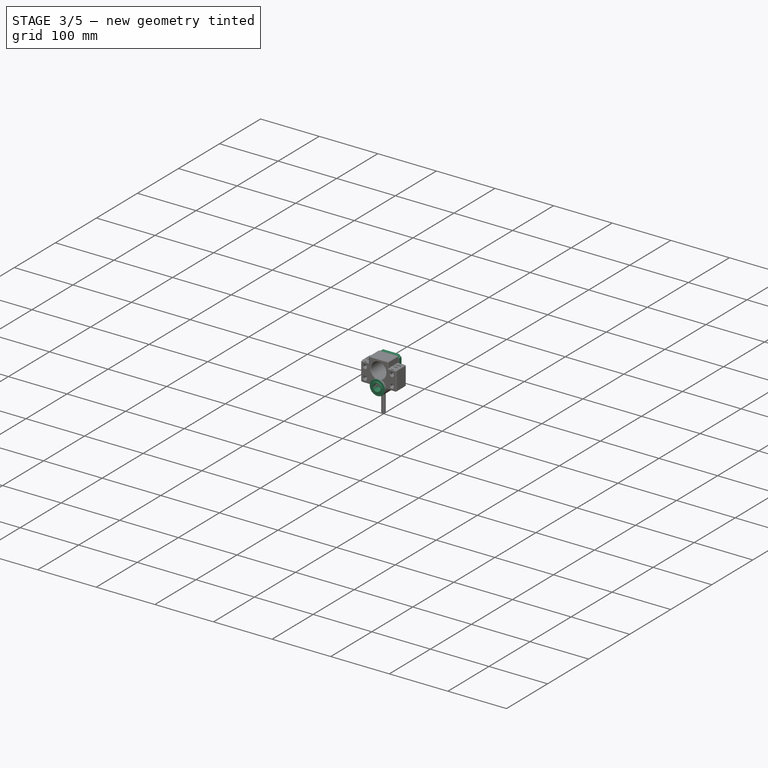
[diagram: stage 3 of 5 — iso view after this stage's code; geometry added in this stage tinted green]
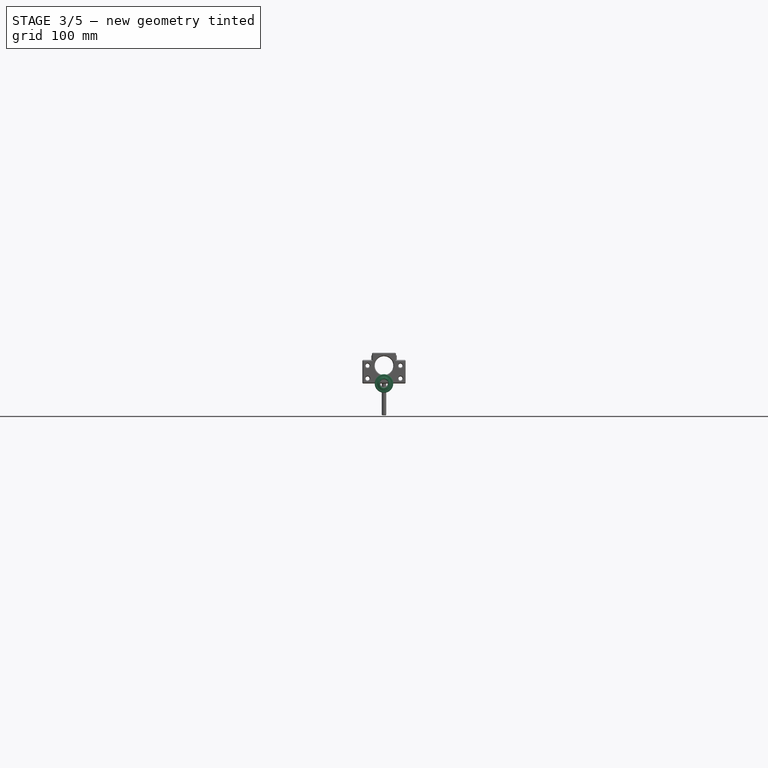
[diagram: stage 3 of 5 — front view after this stage's code; geometry added in this stage tinted green]
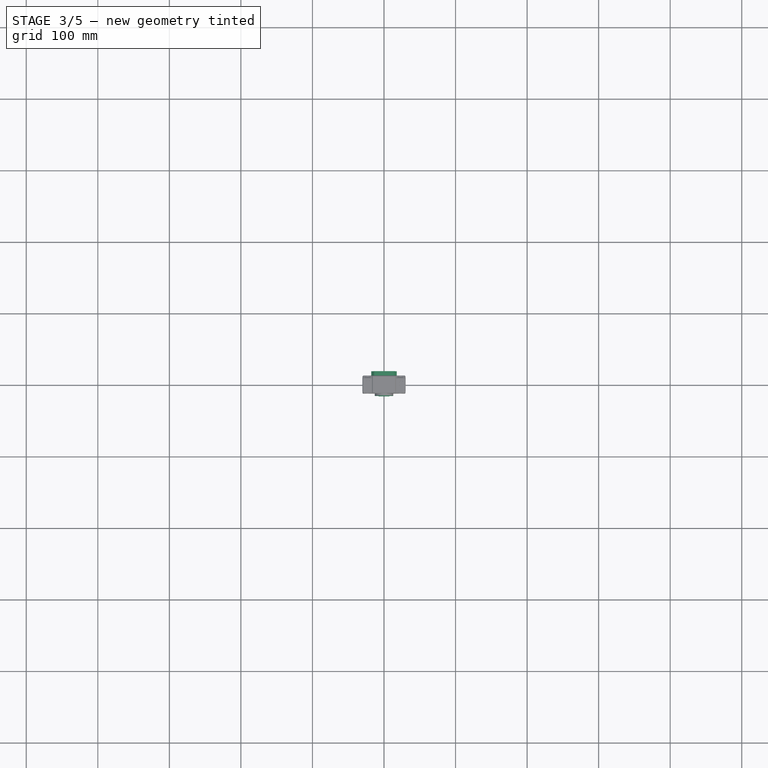
[diagram: stage 3 of 5 — top view after this stage's code; geometry added in this stage tinted green]
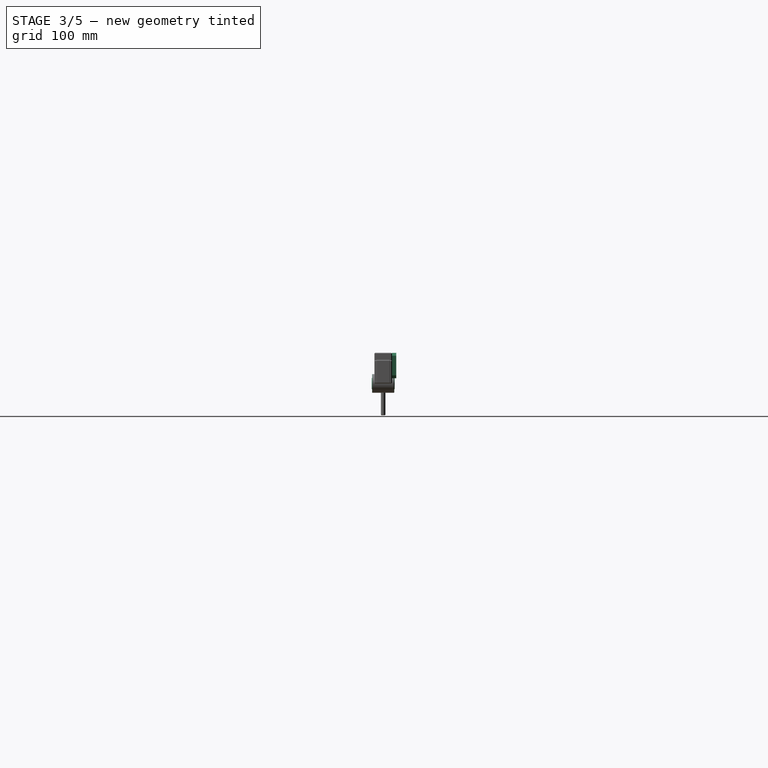
[diagram: stage 3 of 5 — right view after this stage's code; geometry added in this stage tinted green]
FEATURE [Sketcher::SketchObject] Sketch005
  ExternalGeometry = -> [Mirrored001]
  FullyConstrained = true
  MapMode = 5
  Placement = pos=(0,12.35,-2.7e-15) rot=(-1,0,0;1.5708rad)
  Support = -> [Mirrored001]
  sketch-geometry (11):
    g0: LineSegment StartX=-13.75 StartY=-7.25 StartZ=0 EndX=13.75 EndY=-7.25 EndZ=0
    g1: LineSegment StartX=17.75 StartY=-11.25 StartZ=0 EndX=17.75 EndY=-38.75 EndZ=0
    g2: LineSegment StartX=13.75 StartY=-42.75 StartZ=0 EndX=-13.75 EndY=-42.75 EndZ=0
    g3: LineSegment StartX=-17.75 StartY=-38.75 StartZ=0 EndX=-17.75 EndY=-11.25 EndZ=0
    g4: LineSegment StartX=-17.75 StartY=-11.25 StartZ=0 EndX=-13.75 EndY=-7.25 EndZ=0
    g5: LineSegment StartX=13.75 StartY=-7.25 StartZ=0 EndX=17.75 EndY=-11.25 EndZ=0
    g6: LineSegment StartX=13.75 StartY=-42.75 StartZ=0 EndX=17.75 EndY=-38.75 EndZ=0
    g7: LineSegment StartX=-13.75 StartY=-42.75 StartZ=0 EndX=-17.75 EndY=-38.75 EndZ=0
    g8: GeomPoint [constr] X=-17.75 Y=-7.25 Z=0
    g9: GeomPoint [constr] X=17.75 Y=-42.75 Z=0
    g10: Circle CenterX=0 CenterY=-25 CenterZ=0 NormalX=0 NormalY=0 NormalZ=1 AngleXU=0 Radius=13
  constraints (29):
    c: Horizontal(g0)
    c: Horizontal(g2)
    c: Vertical(g1)
    c: Vertical(g3)
    c: Equal(g6,g7)
    c: Equal(g7,g4)
    c: Equal(g4,g5)
    c: Coincident(g0,g4)
    c: Coincident(g3,g4)
    c: Coincident(g0,g5)
    c: Coincident(g1,g5)
    c: Coincident(g1,g6)
    c: Coincident(g2,g6)
    c: Coincident(g2,g7)
    c: Coincident(g3,g7)
    c: Equal(g1,g0)
    c: Equal(g0,g3)
    c: Equal(g3,g2)
    c: Vertical(g0,g2)
    c: Vertical(g9,g1)
    c: Horizontal(g9,g2)
    c: Vertical(g8,g3)
    c: Horizontal(g8,g0)
    c: DistanceX(g3,g1) = 35.5
    c: Angle(g-2,g4) = 2.35619
    c: Diameter(g10) = 26
    c: DistanceX(g3,g0) = 4
    c: Coincident(g10,g-3)
    c: Symmetric(g8,g9,g10)
FEATURE [PartDesign::Pad] Pad002
  BaseFeature = -> Mirrored001
  ClaimChildren = false
  Direction = (1,1,1)
  Fit = 0
  FitJoin = 0
  InnerFit = 0
  InnerFitJoin = 0
  InnerTaperAngle = 0
  InnerTaperAngleRev = 0
  Length = 6
  Length2 = 100
  Linearize = true
  NewSolid = false
  Placement = pos=(0,0,0) rot=(1,0,0;1.5708rad)
  Profile = -> Sketch005
  Refine = true
  Suppress = false
  Type = 0
FEATURE [Sketcher::SketchObject] Sketch006
  ExternalGeometry = -> [Pad002]
  FullyConstrained = true
  MapMode = 5
  Placement = pos=(0,18.35,-2.02e-14) rot=(-1,0,0;1.5708rad)
  Support = -> [Pad002]
  sketch-geometry (4):
    g0: Circle CenterX=-12.75 CenterY=-12.25 CenterZ=0 NormalX=0 NormalY=0 NormalZ=1 AngleXU=0 Radius=2
    g1: Circle CenterX=12.75 CenterY=-12.25 CenterZ=0 NormalX=0 NormalY=0 NormalZ=1 AngleXU=0 Radius=2
    g2: Circle CenterX=12.75 CenterY=-37.75 CenterZ=0 NormalX=0 NormalY=0 NormalZ=1 AngleXU=0 Radius=2
    g3: Circle CenterX=-12.75 CenterY=-37.75 CenterZ=0 NormalX=0 NormalY=0 NormalZ=1 AngleXU=0 Radius=2
  constraints (11):
    c: Equal(g0,g1)
    c: Equal(g1,g2)
    c: Equal(g2,g3)
    c: Horizontal(g0,g1)
    c: Horizontal(g3,g2)
    c: Vertical(g0,g3)
    c: Vertical(g1,g2)
    c: Symmetric(g0,g2,g-3)
    c: Diameter(g0) = 4
    c: DistanceX(g0,g1) = 25.5
    c: DistanceY(g2,g1) = 25.5
FEATURE [PartDesign::Hole] Hole002
  BaseFeature = -> Pad002
  ClaimChildren = false
  CustomThreadClearance = 0
  Depth = 16
  DepthType = 0
  Diameter = 4.5
  DrillForDepth = false
  DrillPoint = 1
  DrillPointAngle = 118
  Fit = 0
  FitJoin = 0
  HoleCutCountersinkAngle = 90
  HoleCutCustomValues = false
  HoleCutDepth = 4.4
  HoleCutDiameter = 6.5
  HoleCutType = 1
  InnerFit = 0
  InnerFitJoin = 0
  ModelThread = false
  NewSolid = false
  Placement = pos=(0,0,0) rot=(1,0,0;1.5708rad)
  Profile = -> Sketch006
  Refine = true
  Suppress = false
  Tapered = false
  TaperedAngle = 90
  ThreadClass = 0
  ThreadDepth = 16
  ThreadDepthType = 0
  ThreadDirection = 0
  ThreadFit = 0
  ThreadSize = 11
  ThreadType = 1
  Threaded = false
  UseCustomThreadClearance = false
FEATURE [Sketcher::SketchObject] Sketch007
  FullyConstrained = true
  MapMode = 5
  Placement = pos=(0,0,0) rot=(0.57735,0.57735,0.57735;2.0944rad)
  Support = -> [YZ_Plane003]
  sketch-geometry (16):
    g0: LineSegment StartX=-15.5 StartY=13 StartZ=0 EndX=15.5 EndY=13 EndZ=0
    g1: LineSegment StartX=16 StartY=8 StartZ=0 EndX=16 EndY=6 EndZ=0
    g2: LineSegment StartX=16 StartY=6 StartZ=0 EndX=-16 EndY=6 EndZ=0
    g3: LineSegment StartX=-16 StartY=6 StartZ=0 EndX=-16 EndY=8 EndZ=0
    g4: LineSegment StartX=-15.5 StartY=13 StartZ=0 EndX=-15.5 EndY=12 EndZ=0
    g5: LineSegment StartX=-15.5 StartY=12 StartZ=0 EndX=-15 EndY=12 EndZ=0
    g6: LineSegment StartX=-15 StartY=12 StartZ=0 EndX=-15 EndY=9.5 EndZ=0
    g7: LineSegment StartX=-15 StartY=9.5 StartZ=0 EndX=-15.5 EndY=8.3 EndZ=0
    g8: LineSegment StartX=-15.5 StartY=8.3 StartZ=0 EndX=-15 EndY=8 EndZ=0
    g9: LineSegment StartX=-15 StartY=8 StartZ=0 EndX=-16 EndY=8 EndZ=0
    g10: LineSegment StartX=15.5 StartY=13 StartZ=0 EndX=15.5 EndY=12 EndZ=0
    g11: LineSegment StartX=15.5 StartY=12 StartZ=0 EndX=15 EndY=12 EndZ=0
    g12: LineSegment StartX=15 StartY=12 StartZ=0 EndX=15 EndY=9.5 EndZ=0
    g13: LineSegment StartX=15 StartY=9.5 StartZ=0 EndX=15.5 EndY=8.3 EndZ=0
    g14: LineSegment StartX=15.5 StartY=8.3 StartZ=0 EndX=15 EndY=8 EndZ=0
    g15: LineSegment StartX=15 StartY=8 StartZ=0 EndX=16 EndY=8 EndZ=0
  constraints (46):
    c: Coincident(g1,g2)
    c: Coincident(g2,g3)
    c: Vertical(g1)
    c: Vertical(g3)
    c: DistanceY(g-1,g1) = 6
    c: Vertical(g4)
    c: Coincident(g5,g4)
    c: Coincident(g6,g5)
    c: Vertical(g6)
    c: Coincident(g7,g6)
    c: Coincident(g8,g7)
    c: Coincident(g9,g8)
    c: Horizontal(g9)
    c: Coincident(g0,g4)
    c: Coincident(g3,g9)
    c: Coincident(g10,g11)
    c: Horizontal(g11)
    c: Coincident(g11,g12)
    c: Vertical(g12)
    c: Coincident(g12,g13)
    c: Coincident(g13,g14)
    c: Coincident(g14,g15)
    c: Horizontal(g15)
    c: Vertical(g10)
    c: Coincident(g1,g15)
    c: Coincident(g0,g10)
    c: Equal(g9,g15)
    c: Horizontal(g5)
    c: Equal(g5,g11)
    c: Equal(g12,g6)
    c: Equal(g7,g13)
    c: Equal(g8,g14)
    c: Symmetric(g1,g2,g-2)
    c: DistanceX(g2,g2) = 32
    c: Symmetric(g0,g0,g-2)
    c: DistanceX(g0,g0) = 31
    c: DistanceX(g5,g11) = 30
    c: DistanceX(g8,g14) = 30
    c: DistanceY(g14,g12) = 1.5
    c: DistanceY(g14,g13) = 0.3
    c: Equal(g10,g4)
    c: Horizontal(g13,g7)
    c: DistanceY(g3,g3) = 2
    c: DistanceX(g7,g13) = 31
    c: DistanceY(g4,g4) = 1
    c: DistanceY(g-1,g0) = 13
FEATURE [PartDesign::Revolution] Revolution001
  Angle = 360
  Axis = (1e-16,1,-1e-16)
  Base = (0,0,0)
  ClaimChildren = false
  Fit = 0
  FitJoin = 0
  InnerFit = 0
  InnerFitJoin = 0
  NewSolid = false
  Placement = pos=(0,0,0) rot=(0.57735,0.57735,0.57735;2.0944rad)
  Profile = -> Sketch007
  ReferenceAxis = -> Y_Axis003
  Refine = true
  Suppress = false
FEATURE [PartDesign::Chamfer] Chamfer003
  Angle = 45
  Base = -> Revolution001 [Edge15,Edge13,Edge3,Edge1,Edge16,Edge18]
  BaseFeature = -> Revolution001
  ChamferType = 0
  FlipDirection = false
  NewSolid = false
  Placement = pos=(0,0,0) rot=(0.57735,0.57735,0.57735;2.0944rad)
  Refine = true
  Size = 0.5
  Size2 = 1
  SupportTransform = false
  Suppress = false
FEATURE [App::Link] Link008  label="Link008(BK12-Assembly)"
  AutoLinkLabel = true
  LinkPlacement = pos=(-13.0269,207,0.276907) rot=(0,1,0;1.5708rad)
  LinkedObject = -> Assembly001
  Placement = pos=(-13.0269,207,0.276907) rot=(0,1,0;1.5708rad)
  SyncGroupVisibility = false
  _LinkVersion = 1
FEATURE [App::Link] Link009  label="Link009(BF12-Assembly)"
  AutoLinkLabel = true
  LinkPlacement = pos=(-0.0269121,-51.5,-24.7231) rot=(0,1,0;0rad)
  LinkedObject = -> Assembly
  Placement = pos=(-0.0269121,-51.5,-24.7231) rot=(0,1,0;0rad)
  SyncGroupVisibility = false
  _LinkVersion = 1
FEATURE [App::Link] Link010  label="Link010(RM1605-250)"
  AutoLinkLabel = true
  LinkPlacement = pos=(-0.0269079,67,0.276905) rot=(0,-1,0;4.71239rad)
  LinkedObject = -> Body005
  Placement = pos=(-0.0269079,67,0.276905) rot=(0,-1,0;4.71239rad)
  SyncGroupVisibility = false
  _LinkVersion = 1
FEATURE [PartDesign::Chamfer] Chamfer007
  Angle = 45
  Base = -> Hole002 [Edge104,Edge149,Edge174,Edge173]
  BaseFeature = -> Hole002
  ChamferType = 0
  FlipDirection = false
  NewSolid = false
  Placement = pos=(0,0,0) rot=(1,0,0;1.5708rad)
  Refine = true
  Size = 1
  Size2 = 1
  SupportTransform = false
  Suppress = false
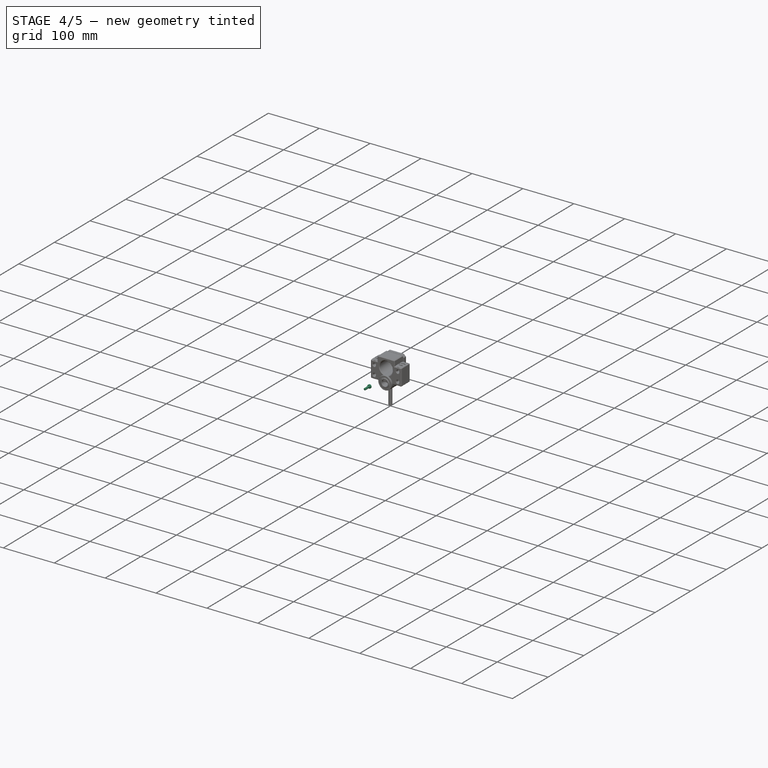
[diagram: stage 4 of 5 — iso view after this stage's code; geometry added in this stage tinted green]
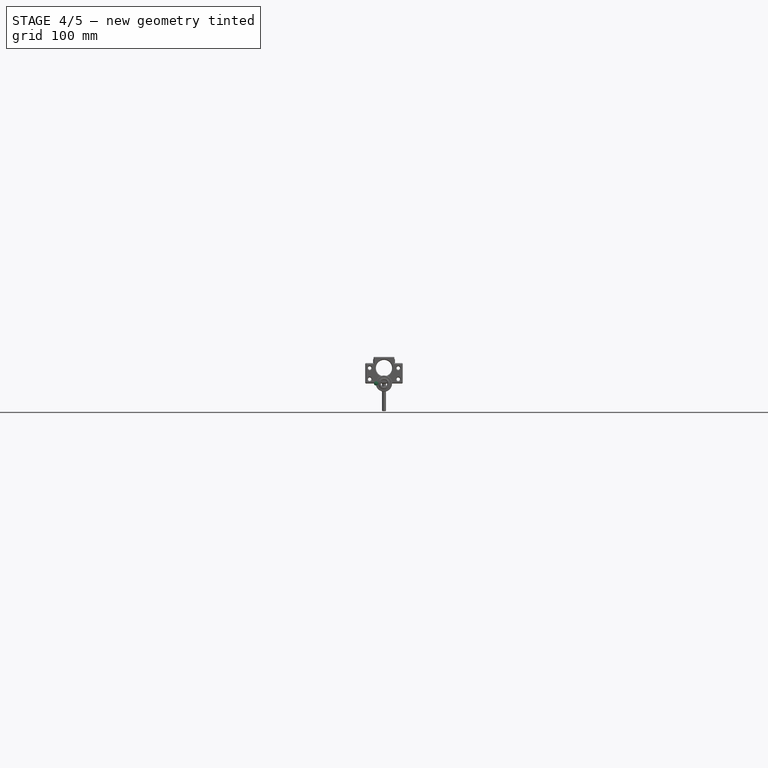
[diagram: stage 4 of 5 — front view after this stage's code; geometry added in this stage tinted green]
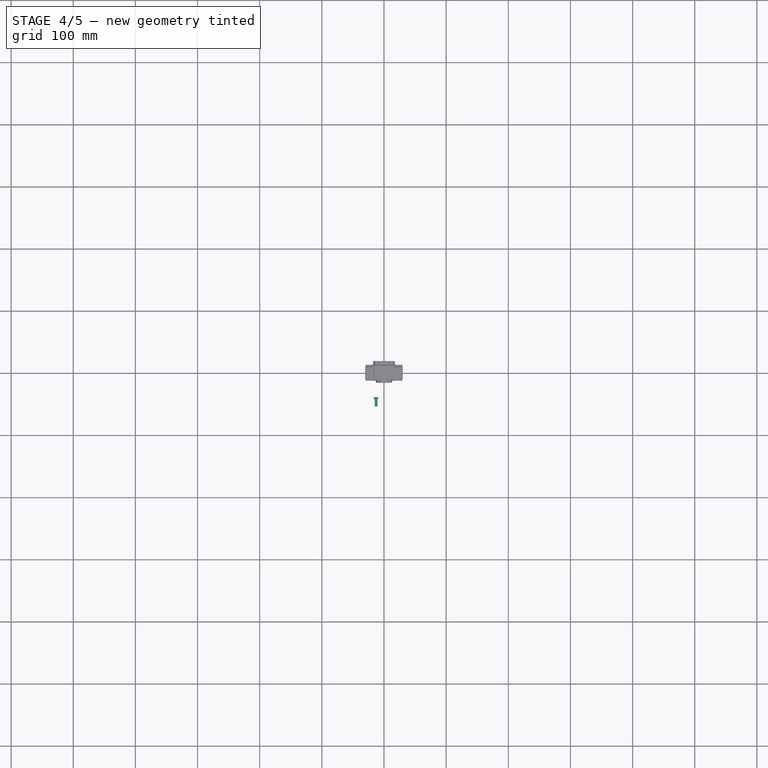
[diagram: stage 4 of 5 — top view after this stage's code; geometry added in this stage tinted green]
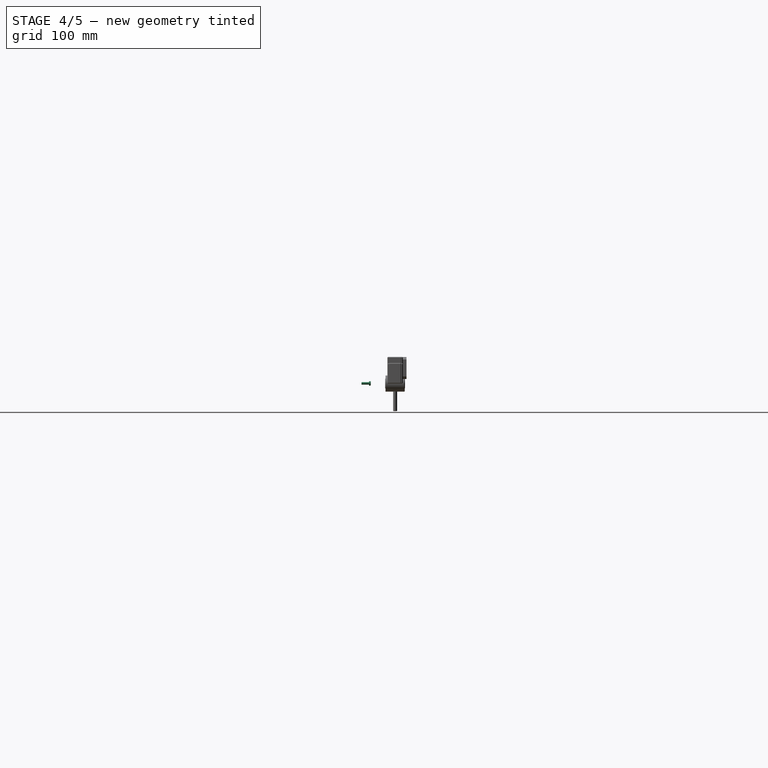
[diagram: stage 4 of 5 — right view after this stage's code; geometry added in this stage tinted green]
FEATURE [PartDesign::Body] Body003  label="BK12 bearings"
  AutoGroupSolids = false
  ExportMode = 0
  Group = -> [Sketch007,Revolution001,Chamfer003]
  Origin = -> Origin003
  Placement = pos=(0,202,0) rot=(0,0,1;0rad)
  Tip = -> Chamfer003
  _ExportChildren = -> [Revolution001,Chamfer003]
  _GroupVersion = 1
FEATURE [App::Link] Link002  label="Link002(BK12 bearings)"
  AutoLinkLabel = true
  LinkPlacement = pos=(0,-53,13) rot=(0,0,1;0rad)
  LinkedObject = -> Body003
  Placement = pos=(0,-53,13) rot=(0,0,1;0rad)
  SyncGroupVisibility = false
  _LinkVersion = 1
FEATURE [App::Link] Link003  label="Link003(BK12)"
  AutoLinkLabel = true
  LinkPlacement = pos=(25,-56,13) rot=(0,-1,0;1.5708rad)
  LinkedObject = -> Body002
  Placement = pos=(25,-56,13) rot=(0,-1,0;1.5708rad)
  SyncGroupVisibility = false
  _LinkVersion = 1
FEATURE [Part::FeaturePython] Screw  label="M4x12-Screw"  # Fasteners workbench fastener (typed FeaturePython)
  Placement = pos=(-12.75,-42.05,0.250003) rot=(-0.57735,0.57735,0.57735;2.0944rad)
  diameter = 2
  invert = false
  length = 3
  lengthCustom = 12
  matchOuter = false
  offset = 0
  thread = false
  type = 13
FEATURE [App::Link] Link004  label="Link004(M4x12-Screw)"
  AutoLinkLabel = true
  LinkPlacement = pos=(-12.75,-42.05,25.75) rot=(-0.57735,0.57735,0.57735;2.0944rad)
  LinkedObject = -> Screw
  Placement = pos=(-12.75,-42.05,25.75) rot=(-0.57735,0.57735,0.57735;2.0944rad)
  SyncGroupVisibility = false
  _LinkVersion = 1
FEATURE [App::Link] Link005  label="Link005(M4x12-Screw)"
  AutoLinkLabel = true
  LinkPlacement = pos=(12.75,-42.05,0.250003) rot=(-0.57735,0.57735,0.57735;2.0944rad)
  LinkedObject = -> Screw
  Placement = pos=(12.75,-42.05,0.250003) rot=(-0.57735,0.57735,0.57735;2.0944rad)
  SyncGroupVisibility = false
  _LinkVersion = 1
FEATURE [App::Link] Link006  label="Link006(M4x12-Screw)"
  AutoLinkLabel = true
  LinkPlacement = pos=(12.75,-42.05,25.75) rot=(-0.57735,0.57735,0.57735;2.0944rad)
  LinkedObject = -> Screw
  Placement = pos=(12.75,-42.05,25.75) rot=(-0.57735,0.57735,0.57735;2.0944rad)
  SyncGroupVisibility = false
  _LinkVersion = 1
FEATURE [Sketcher::SketchObject] Sketch008
  FullyConstrained = true
  MapMode = 5
  Placement = pos=(0,0,0) rot=(1,0,0;1.5708rad)
  Support = -> [XZ_Plane004]
  sketch-geometry (11):
    g0: LineSegment StartX=-6.05635 StartY=9.5 StartZ=0 EndX=6.05635 EndY=9.5 EndZ=0
    g1: LineSegment StartX=9.5 StartY=6.05635 StartZ=0 EndX=9.5 EndY=-6.05635 EndZ=0
    g2: LineSegment StartX=6.05635 StartY=-9.5 StartZ=0 EndX=-6.05635 EndY=-9.5 EndZ=0
    g3: LineSegment StartX=-9.5 StartY=-6.05635 StartZ=0 EndX=-9.5 EndY=6.05635 EndZ=0
    g4: LineSegment StartX=-9.5 StartY=6.05635 StartZ=0 EndX=-6.05635 EndY=9.5 EndZ=0
    g5: LineSegment StartX=6.05635 StartY=9.5 StartZ=0 EndX=9.5 EndY=6.05635 EndZ=0
    g6: LineSegment StartX=6.05635 StartY=-9.5 StartZ=0 EndX=9.5 EndY=-6.05635 EndZ=0
    g7: LineSegment StartX=-9.5 StartY=-6.05635 StartZ=0 EndX=-6.05635 EndY=-9.5 EndZ=0
    g8: GeomPoint [constr] X=9.5 Y=9.5 Z=0
    g9: GeomPoint [constr] X=-9.5 Y=-9.5 Z=0
    g10: Circle CenterX=0 CenterY=0 CenterZ=0 NormalX=0 NormalY=0 NormalZ=1 AngleXU=0 Radius=6
  constraints (29):
    c: Horizontal(g0)
    c: Horizontal(g2)
    c: Vertical(g1)
    c: Vertical(g3)
    c: Parallel(g7,g5)
    c: Parallel(g4,g6)
    c: Equal(g5,g4)
    c: Equal(g4,g7)
    c: Equal(g7,g6)
    c: Angle(g4,g-2) = 0.785398
    c: Vertical(g5,g6)
    c: Coincident(g0,g4)
    c: Coincident(g3,g4)
    c: Coincident(g0,g5)
    c: Coincident(g1,g5)
    c: Coincident(g1,g6)
    c: Coincident(g2,g6)
    c: Coincident(g2,g7)
    c: Coincident(g3,g7)
    c: Horizontal(g9,g2)
    c: Vertical(g9,g3)
    c: Vertical(g8,g1)
    c: Horizontal(g0,g8)
    c: Symmetric(g9,g8,g-1)
    c: Equal(g3,g0)
    c: Distance(g1,g2) = 22
    c: DistanceX(g3,g1) = 19
    c: Coincident(g10,g-1)
    c: Diameter(g10) = 12
FEATURE [PartDesign::Pad] Pad003
  ClaimChildren = false
  Direction = (1,1,1)
  Fit = 0
  FitJoin = 0
  InnerFit = 0
  InnerFitJoin = 0
  InnerTaperAngle = 0
  InnerTaperAngleRev = 0
  Length = 7.2
  Length2 = 100
  Linearize = true
  Midplane = true
  NewSolid = false
  Placement = pos=(0,0,0) rot=(1,0,0;1.5708rad)
  Profile = -> Sketch008
  Refine = true
  Suppress = false
  Type = 0
FEATURE [Sketcher::SketchObject] Sketch009
  FullyConstrained = true
  MapMode = 5
  Placement = pos=(0,3.6,-8e-16) rot=(-1,0,0;1.5708rad)
  Support = -> [Pad003]
  sketch-geometry (2):
    g0: Circle CenterX=0 CenterY=0 CenterZ=0 NormalX=0 NormalY=0 NormalZ=1 AngleXU=0 Radius=8.75
    g1: Circle CenterX=0 CenterY=0 CenterZ=0 NormalX=0 NormalY=0 NormalZ=1 AngleXU=0 Radius=6
  constraints (4):
    c: Coincident(g0,g-1)
    c: Coincident(g1,g0)
    c: Diameter(g0) = 17.5
    c: Diameter(g1) = 12
FEATURE [PartDesign::Pad] Pad004
  BaseFeature = -> Pad003
  ClaimChildren = false
  Direction = (1,1,1)
  Fit = 0
  FitJoin = 0
  InnerFit = 0
  InnerFitJoin = 0
  InnerTaperAngle = 0
  InnerTaperAngleRev = 0
  Length = 0.5
  Length2 = 100
  Linearize = true
  NewSolid = false
  Placement = pos=(0,0,0) rot=(1,0,0;1.5708rad)
  Profile = -> Sketch009
  Refine = true
  Suppress = false
  Type = 0
FEATURE [Sketcher::SketchObject] Sketch010
  FullyConstrained = true
  MapMode = 5
  Placement = pos=(-7.77817,3.4e-15,7.77817) rot=(-0.382683,0,0.92388;3.14159rad)
  Support = -> [Pad004]
  sketch-geometry (1):
    g0: Circle CenterX=0 CenterY=0 CenterZ=0 NormalX=0 NormalY=0 NormalZ=1 AngleXU=0 Radius=1.5
  constraints (2):
    c: Coincident(g0,g-1)
    c: Diameter(g0) = 3
FEATURE [PartDesign::Pocket] Pocket001
  BaseFeature = -> Pad004
  ClaimChildren = false
  Fit = 0
  FitJoin = 0
  InnerFit = 0
  InnerFitJoin = 0
  InnerTaperAngle = 0
  InnerTaperAngleRev = 0
  Length = 5
  Length2 = 100
  Linearize = true
  NewSolid = false
  Placement = pos=(0,0,0) rot=(1,0,0;1.5708rad)
  Profile = -> Sketch010
  Refine = true
  Suppress = false
  Type = 2
FEATURE [PartDesign::Chamfer] Chamfer004
  Angle = 45
  Base = -> Pocket001 [Face5,Edge13,Edge8,Edge15,Edge16,Edge3,Edge6,Edge12,Edge14]
  BaseFeature = -> Pocket001
  ChamferType = 0
  FlipDirection = false
  NewSolid = false
  Placement = pos=(0,0,0) rot=(1,0,0;1.5708rad)
  Refine = true
  Size = 0.5
  Size2 = 1
  SupportTransform = false
  Suppress = false
FEATURE [PartDesign::Chamfer] Chamfer005
  Angle = 45
  Base = -> Chamfer004 [Edge67]
  BaseFeature = -> Chamfer004
  ChamferType = 0
  FlipDirection = false
  NewSolid = false
  Placement = pos=(0,0,0) rot=(1,0,0;1.5708rad)
  Refine = true
  Size = 1.5
  Size2 = 1
  SupportTransform = false
  Suppress = false
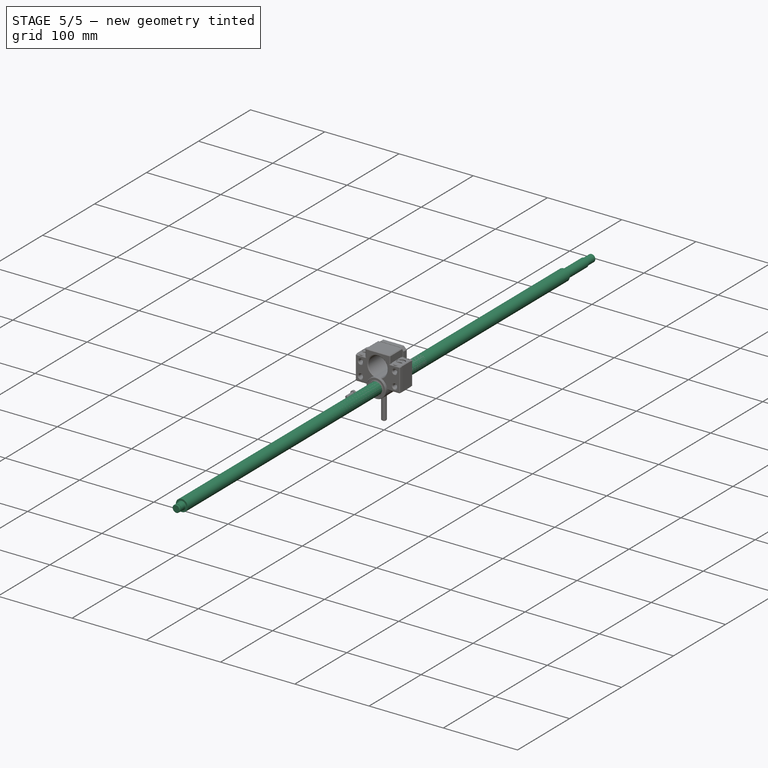
[diagram: stage 5 of 5 — iso view after this stage's code; geometry added in this stage tinted green]
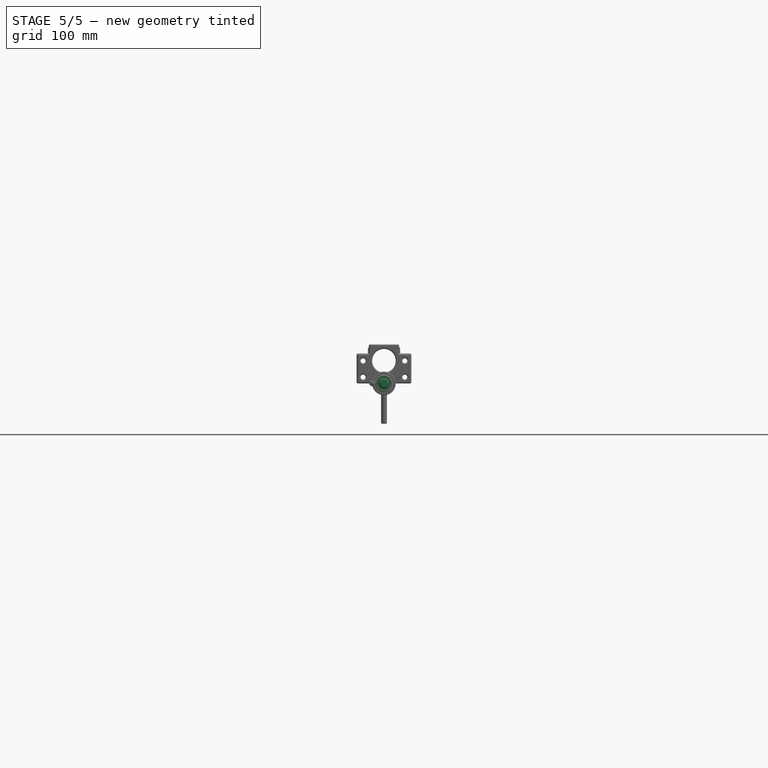
[diagram: stage 5 of 5 — front view after this stage's code; geometry added in this stage tinted green]
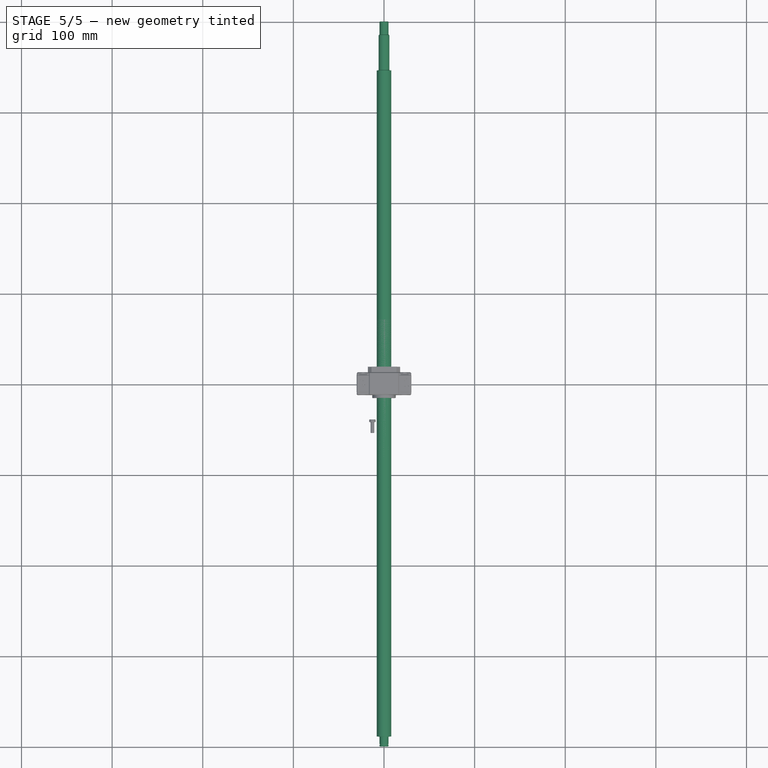
[diagram: stage 5 of 5 — top view after this stage's code; geometry added in this stage tinted green]
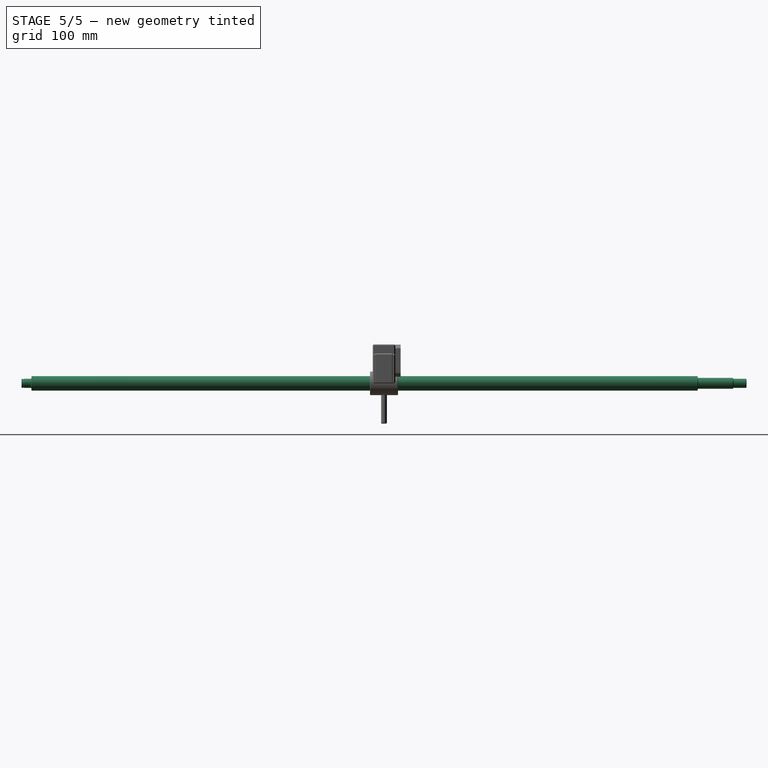
[diagram: stage 5 of 5 — right view after this stage's code; geometry added in this stage tinted green]
FEATURE [PartDesign::Body] Body004  label="BK12 Nut"
  AutoGroupSolids = false
  ExportMode = 0
  Group = -> [Sketch008,Pad003,Sketch009,Pad004,Sketch010,Pocket001,Chamfer004,Chamfer005]
  Origin = -> Origin004
  Placement = pos=(0,230,0) rot=(0,0,1;0rad)
  Tip = -> Chamfer005
  _ExportChildren = -> [Pad003,Pad004,Pocket001,Chamfer004,Chamfer005]
  _GroupVersion = 1
FEATURE [App::Link] Link007  label="Link007(BK12 Nut)"
  AutoLinkLabel = true
  LinkPlacement = pos=(1e-15,-32.9,13) rot=(0.707107,0,0.707107;3.14159rad)
  LinkedObject = -> Body004
  Placement = pos=(1e-15,-32.9,13) rot=(0.707107,0,0.707107;3.14159rad)
  SyncGroupVisibility = false
  _LinkVersion = 1
FEATURE [Part::FeaturePython] Parts001  # WARN: FeaturePython — macro-defined, semantics opaque (R4)
  Group = -> [Link002,Link003,Screw,Link004,Link005,Link006,Link007]
  GroupMode = 0
  _LinkVersion = 1
FEATURE [Sketcher::SketchObject] Sketch011
  FullyConstrained = true
  MapMode = 5
  Placement = pos=(0,0,0) rot=(0.57735,0.57735,0.57735;2.0944rad)
  Support = -> [YZ_Plane005]
  sketch-geometry (14):
    g0: LineSegment StartX=-125 StartY=0 StartZ=0 EndX=125 EndY=0 EndZ=0
    g1: LineSegment StartX=125 StartY=0 StartZ=0 EndX=125 EndY=5 EndZ=0
    g2: LineSegment StartX=125 StartY=5 StartZ=0 EndX=110 EndY=5 EndZ=0
    g3: LineSegment StartX=110 StartY=5 StartZ=0 EndX=110 EndY=6 EndZ=0
    g4: LineSegment StartX=110 StartY=6 StartZ=0 EndX=71 EndY=6 EndZ=0
    g5: LineSegment StartX=71 StartY=6 StartZ=0 EndX=71 EndY=8 EndZ=0
    g6: LineSegment StartX=71 StartY=8 StartZ=0 EndX=-114 EndY=8 EndZ=0
    g7: LineSegment StartX=-114 StartY=8 StartZ=0 EndX=-114 EndY=5 EndZ=0
    g8: LineSegment StartX=-114 StartY=5 StartZ=0 EndX=-122.2 EndY=5 EndZ=0
    g9: LineSegment StartX=-122.2 StartY=5 StartZ=0 EndX=-122.2 EndY=4.6 EndZ=0
    g10: LineSegment StartX=-122.2 StartY=4.6 StartZ=0 EndX=-123.2 EndY=4.6 EndZ=0
    g11: LineSegment StartX=-123.2 StartY=4.6 StartZ=0 EndX=-123.2 EndY=5 EndZ=0
    g12: LineSegment StartX=-123.2 StartY=5 StartZ=0 EndX=-125 EndY=5 EndZ=0
    g13: LineSegment StartX=-125 StartY=5 StartZ=0 EndX=-125 EndY=0 EndZ=0
  constraints (41):
    c: PointOnObject(g0,g-1)
    c: Coincident(g0,g1)
    c: Vertical(g1)
    c: Coincident(g1,g2)
    c: Horizontal(g2)
    c: Coincident(g2,g3)
    c: Vertical(g3)
    c: Coincident(g3,g4)
    c: Horizontal(g4)
    c: Coincident(g4,g5)
    c: Vertical(g5)
    c: Coincident(g5,g6)
    c: Horizontal(g6)
    c: Coincident(g6,g7)
    c: Vertical(g7)
    c: Coincident(g7,g8)
    c: Horizontal(g8)
    c: Coincident(g8,g9)
    c: Vertical(g9)
    c: Coincident(g9,g10)
    c: Horizontal(g10)
    c: Coincident(g10,g11)
    c: Vertical(g11)
    c: Coincident(g11,g12)
    c: Horizontal(g12)
    c: Coincident(g12,g13)
    c: Coincident(g13,g0)
    c: DistanceY(g1,g1) = 5
    c: DistanceY(g0,g3) = 6
    c: DistanceY(g0,g5) = 8
    c: Vertical(g13)
    c: Horizontal(g11,g8)
    c: DistanceY(g0,g12) = 5
    c: DistanceY(g0,g9) = 4.6
    c: DistanceX(g10,g10) = 1
    c: DistanceX(g12,g12) = 1.8
    c: DistanceX(g0,g7) = 11
    c: DistanceX(g2,g2) = 15
    c: DistanceX(g5,g0) = 54
    c: DistanceX(g0,g0) = 250
    c: Symmetric(g0,g0,g-1)
FEATURE [PartDesign::Revolution] Revolution002
  Angle = 360
  Axis = (1e-16,1,-1e-16)
  Base = (0,0,0)
  ClaimChildren = false
  Fit = 0
  FitJoin = 0
  InnerFit = 0
  InnerFitJoin = 0
  NewSolid = false
  Placement = pos=(0,0,0) rot=(0.57735,0.57735,0.57735;2.0944rad)
  Profile = -> Sketch011
  ReferenceAxis = -> Y_Axis005
  Refine = true
  Suppress = false
FEATURE [PartDesign::Chamfer] Chamfer006
  Angle = 45
  Base = -> Revolution002 [Edge17,Edge1,Edge2,Edge5,Edge10]
  BaseFeature = -> Revolution002
  ChamferType = 0
  FlipDirection = false
  NewSolid = false
  Placement = pos=(0,0,0) rot=(0.57735,0.57735,0.57735;2.0944rad)
  Refine = true
  Size = 0.6
  Size2 = 1
  SupportTransform = false
  Suppress = false
FEATURE [PartDesign::Body] Body002  label="BK12"
  AutoGroupSolids = false
  ExportMode = 0
  Group = -> [Sketch003,Pad001,Chamfer002,Sketch004,Hole001,Mirrored001,Sketch005,Pad002,Sketch006,Hole002,Chamfer007]
  Origin = -> Origin002
  Placement = pos=(0,149,-24) rot=(0,0,1;0rad)
  Tip = -> Chamfer007
  _ExportChildren = -> [Pad001,Chamfer002,Hole001,Mirrored001,Pad002,Hole002,Chamfer007]
  _GroupVersion = 1
FEATURE [PartDesign::Line] DatumLine
  AttacherType = Attacher::AttachEngineLine
  Length = 250
  MapMode = 19
  MinimumLength = 10
  Placement = pos=(7.9e-15,71,-2.31e-14) rot=(-0.57735,-0.57735,-0.57735;2.0944rad)
  ResizeMode = 0
  Support = -> [Chamfer006]
FEATURE [PartDesign::Body] Body005  label="RM1605-250"
  AutoGroupSolids = false
  ExportMode = 0
  Group = -> [Sketch011,Revolution002,Chamfer006,DatumLine]
  Origin = -> Origin005
  Tip = -> Chamfer006
  _ExportChildren = -> [Revolution002,Chamfer006,DatumLine]
  _GroupVersion = 1
FEATURE [Sketcher::SketchObject] Sketch012
  FullyConstrained = true
  MapMode = 5
  Placement = pos=(0,0,0) rot=(0.57735,0.57735,0.57735;2.0944rad)
  Support = -> [YZ_Plane006]
  sketch-geometry (14):
    g0: LineSegment StartX=-275 StartY=0 StartZ=0 EndX=275 EndY=0 EndZ=0
    g1: LineSegment StartX=275 StartY=0 StartZ=0 EndX=275 EndY=5 EndZ=0
    g2: LineSegment StartX=275 StartY=5 StartZ=0 EndX=260 EndY=5 EndZ=0
    g3: LineSegment StartX=260 StartY=5 StartZ=0 EndX=260 EndY=6 EndZ=0
    g4: LineSegment StartX=260 StartY=6 StartZ=0 EndX=221 EndY=6 EndZ=0
    g5: LineSegment StartX=221 StartY=6 StartZ=0 EndX=221 EndY=8 EndZ=0
    g6: LineSegment StartX=221 StartY=8 StartZ=0 EndX=-264 EndY=8 EndZ=0
    g7: LineSegment StartX=-264 StartY=8 StartZ=0 EndX=-264 EndY=5 EndZ=0
    g8: LineSegment StartX=-264 StartY=5 StartZ=0 EndX=-272.2 EndY=5 EndZ=0
    g9: LineSegment StartX=-272.2 StartY=5 StartZ=0 EndX=-272.2 EndY=4.6 EndZ=0
    g10: LineSegment StartX=-272.2 StartY=4.6 StartZ=0 EndX=-273.2 EndY=4.6 EndZ=0
    g11: LineSegment StartX=-273.2 StartY=4.6 StartZ=0 EndX=-273.2 EndY=5 EndZ=0
    g12: LineSegment StartX=-273.2 StartY=5 StartZ=0 EndX=-275 EndY=5 EndZ=0
    g13: LineSegment StartX=-275 StartY=5 StartZ=0 EndX=-275 EndY=0 EndZ=0
  constraints (41):
    c: PointOnObject(g0,g-1)
    c: Coincident(g0,g1)
    c: Vertical(g1)
    c: Coincident(g1,g2)
    c: Horizontal(g2)
    c: Coincident(g2,g3)
    c: Vertical(g3)
    c: Coincident(g3,g4)
    c: Horizontal(g4)
    c: Coincident(g4,g5)
    c: Vertical(g5)
    c: Coincident(g5,g6)
    c: Horizontal(g6)
    c: Coincident(g6,g7)
    c: Vertical(g7)
    c: Coincident(g7,g8)
    c: Horizontal(g8)
    c: Coincident(g8,g9)
    c: Vertical(g9)
    c: Coincident(g9,g10)
    c: Horizontal(g10)
    c: Coincident(g10,g11)
    c: Vertical(g11)
    c: Coincident(g11,g12)
    c: Horizontal(g12)
    c: Coincident(g12,g13)
    c: Coincident(g13,g0)
    c: DistanceY(g1,g1) = 5
    c: DistanceY(g0,g3) = 6
    c: DistanceY(g0,g5) = 8
    c: Vertical(g13)
    c: Horizontal(g11,g8)
    c: DistanceY(g0,g12) = 5
    c: DistanceY(g0,g9) = 4.6
    c: DistanceX(g10,g10) = 1
    c: DistanceX(g12,g12) = 1.8
    c: DistanceX(g0,g7) = 11
    c: DistanceX(g2,g2) = 15
    c: DistanceX(g5,g0) = 54
    c: DistanceX(g0,g0) = 550
    c: Symmetric(g0,g0,g-1)
FEATURE [PartDesign::Revolution] Revolution003
  Angle = 360
  Axis = (1e-16,1,-1e-16)
  Base = (0,0,0)
  ClaimChildren = false
  Fit = 0
  FitJoin = 0
  InnerFit = 0
  InnerFitJoin = 0
  NewSolid = false
  Placement = pos=(0,0,0) rot=(0.57735,0.57735,0.57735;2.0944rad)
  Profile = -> Sketch012
  ReferenceAxis = -> Y_Axis006
  Refine = true
  Suppress = false
FEATURE [PartDesign::Chamfer] Chamfer008
  Angle = 45
  Base = -> Revolution003 [Edge1,Edge2,Edge5,Edge17,Edge10]
  BaseFeature = -> Revolution003
  ChamferType = 0
  FlipDirection = false
  NewSolid = false
  Placement = pos=(0,0,0) rot=(0.57735,0.57735,0.57735;2.0944rad)
  Refine = true
  Size = 0.5
  Size2 = 1
  SupportTransform = false
  Suppress = false
FEATURE [App::Link] Link011  label="Link011(BK12-Assembly)"
  AutoLinkLabel = true
  LinkPlacement = pos=(-13,558.15,25) rot=(0,1,0;1.5708rad)
  LinkedObject = -> Assembly001
  Placement = pos=(-13,558.15,25) rot=(0,1,0;1.5708rad)
  SyncGroupVisibility = false
  _LinkVersion = 1
FEATURE [App::Link] Link012  label="Link012(BF12-Assembly)"
  AutoLinkLabel = true
  LinkedObject = -> Assembly
  SyncGroupVisibility = false
  _LinkVersion = 1
FEATURE [App::Link] Link013  label="Link013(RM1605-600)"
  AutoLinkLabel = true
  LinkPlacement = pos=(1.63e-13,268.15,25) rot=(0,-1,0;4.71239rad)
  LinkedObject = -> Body006
  Placement = pos=(1.63e-13,268.15,25) rot=(0,-1,0;4.71239rad)
  SyncGroupVisibility = false
  _LinkVersion = 1
FEATURE [PartDesign::Line] DatumLine001
  AttacherType = Attacher::AttachEngineLine
  Length = 550
  MapMode = 19
  MinimumLength = 10
  Placement = pos=(2.45e-14,221,-7.28e-14) rot=(-0.57735,-0.57735,-0.57735;2.0944rad)
  ResizeMode = 0
  Support = -> [Chamfer008]
FEATURE [PartDesign::Body] Body006  label="RM1605-600"
  AutoGroupSolids = false
  ExportMode = 0
  Group = -> [Sketch012,Revolution003,Chamfer008,DatumLine001]
  Origin = -> Origin006
  Placement = pos=(-91,0,0) rot=(0,0,1;0rad)
  Tip = -> Chamfer008
  _ExportChildren = -> [Revolution003,Chamfer008,DatumLine001]
  _GroupVersion = 1
FEATURE [Sketcher::SketchObject] Sketch013
  FullyConstrained = true
  MapMode = 5
  Placement = pos=(0,0,0) rot=(0.57735,0.57735,0.57735;2.0944rad)
  Support = -> [YZ_Plane007]
  sketch-geometry (14):
    g0: LineSegment StartX=-400 StartY=0 StartZ=0 EndX=400 EndY=0 EndZ=0
    g1: LineSegment StartX=400 StartY=0 StartZ=0 EndX=400 EndY=5 EndZ=0
    g2: LineSegment StartX=400 StartY=5 StartZ=0 EndX=385 EndY=5 EndZ=0
    g3: LineSegment StartX=385 StartY=5 StartZ=0 EndX=385 EndY=6 EndZ=0
    g4: LineSegment StartX=385 StartY=6 StartZ=0 EndX=346 EndY=6 EndZ=0
    g5: LineSegment StartX=346 StartY=6 StartZ=0 EndX=346 EndY=8 EndZ=0
    g6: LineSegment StartX=346 StartY=8 StartZ=0 EndX=-389 EndY=8 EndZ=0
    g7: LineSegment StartX=-389 StartY=8 StartZ=0 EndX=-389 EndY=5 EndZ=0
    g8: LineSegment StartX=-389 StartY=5 StartZ=0 EndX=-397.2 EndY=5 EndZ=0
    g9: LineSegment StartX=-397.2 StartY=5 StartZ=0 EndX=-397.2 EndY=4.6 EndZ=0
    g10: LineSegment StartX=-397.2 StartY=4.6 StartZ=0 EndX=-398.2 EndY=4.6 EndZ=0
    g11: LineSegment StartX=-398.2 StartY=4.6 StartZ=0 EndX=-398.2 EndY=5 EndZ=0
    g12: LineSegment StartX=-398.2 StartY=5 StartZ=0 EndX=-400 EndY=5 EndZ=0
    g13: LineSegment StartX=-400 StartY=5 StartZ=0 EndX=-400 EndY=0 EndZ=0
  constraints (41):
    c: PointOnObject(g0,g-1)
    c: Coincident(g0,g1)
    c: Vertical(g1)
    c: Coincident(g1,g2)
    c: Horizontal(g2)
    c: Coincident(g2,g3)
    c: Vertical(g3)
    c: Coincident(g3,g4)
    c: Horizontal(g4)
    c: Coincident(g4,g5)
    c: Vertical(g5)
    c: Coincident(g5,g6)
    c: Horizontal(g6)
    c: Coincident(g6,g7)
    c: Vertical(g7)
    c: Coincident(g7,g8)
    c: Horizontal(g8)
    c: Coincident(g8,g9)
    c: Vertical(g9)
    c: Coincident(g9,g10)
    c: Horizontal(g10)
    c: Coincident(g10,g11)
    c: Vertical(g11)
    c: Coincident(g11,g12)
    c: Horizontal(g12)
    c: Coincident(g12,g13)
    c: Coincident(g13,g0)
    c: DistanceY(g1,g1) = 5
    c: DistanceY(g0,g3) = 6
    c: DistanceY(g0,g5) = 8
    c: Vertical(g13)
    c: Horizontal(g11,g8)
    c: DistanceY(g0,g12) = 5
    c: DistanceY(g0,g9) = 4.6
    c: DistanceX(g10,g10) = 1
    c: DistanceX(g12,g12) = 1.8
    c: DistanceX(g0,g7) = 11
    c: DistanceX(g2,g2) = 15
    c: DistanceX(g5,g0) = 54
    c: DistanceX(g0,g0) = 800
    c: Symmetric(g0,g0,g-1)
FEATURE [PartDesign::Revolution] Revolution004
  Angle = 360
  Axis = (1e-16,1,-1e-16)
  Base = (0,0,0)
  ClaimChildren = false
  Fit = 0
  FitJoin = 0
  InnerFit = 0
  InnerFitJoin = 0
  NewSolid = false
  Placement = pos=(0,0,0) rot=(0.57735,0.57735,0.57735;2.0944rad)
  Profile = -> Sketch013
  ReferenceAxis = -> Y_Axis007
  Refine = true
  Suppress = false
FEATURE [PartDesign::Chamfer] Chamfer009
  Angle = 45
  Base = -> Revolution004 [Edge1,Edge5,Edge2,Edge17,Edge10]
  BaseFeature = -> Revolution004
  ChamferType = 0
  FlipDirection = false
  NewSolid = false
  Placement = pos=(0,0,0) rot=(0.57735,0.57735,0.57735;2.0944rad)
  Refine = true
  Size = 0.6
  Size2 = 1
  SupportTransform = false
  Suppress = false
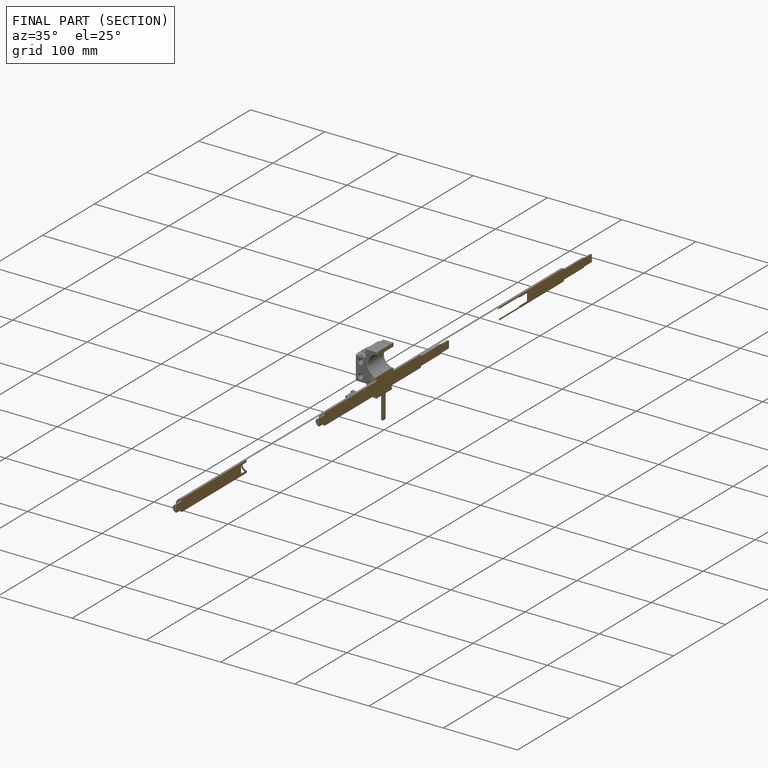
[diagram: finished part — half-section view (interior)]
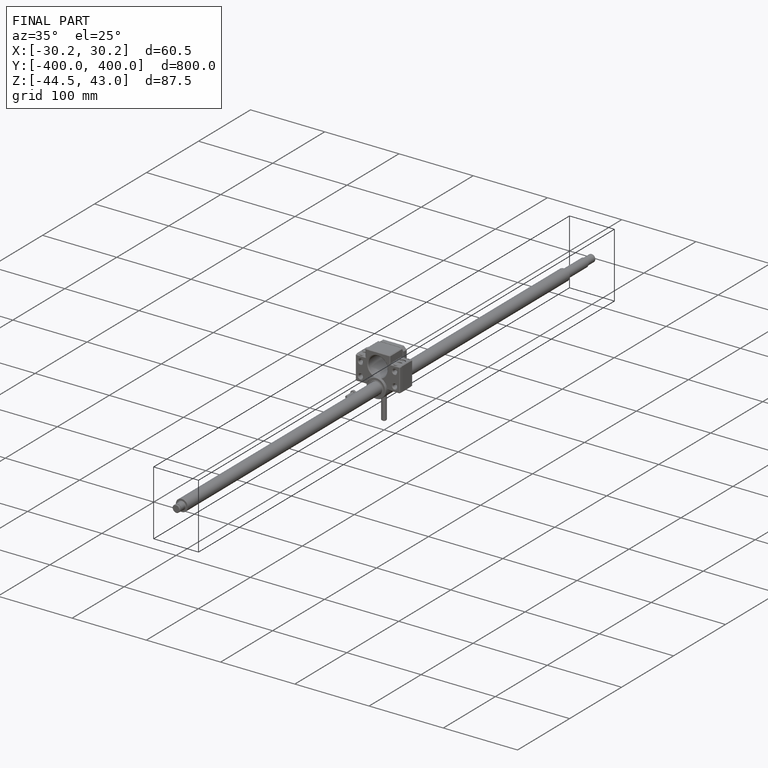
[diagram: finished part — iso view with bounding-box wireframe]
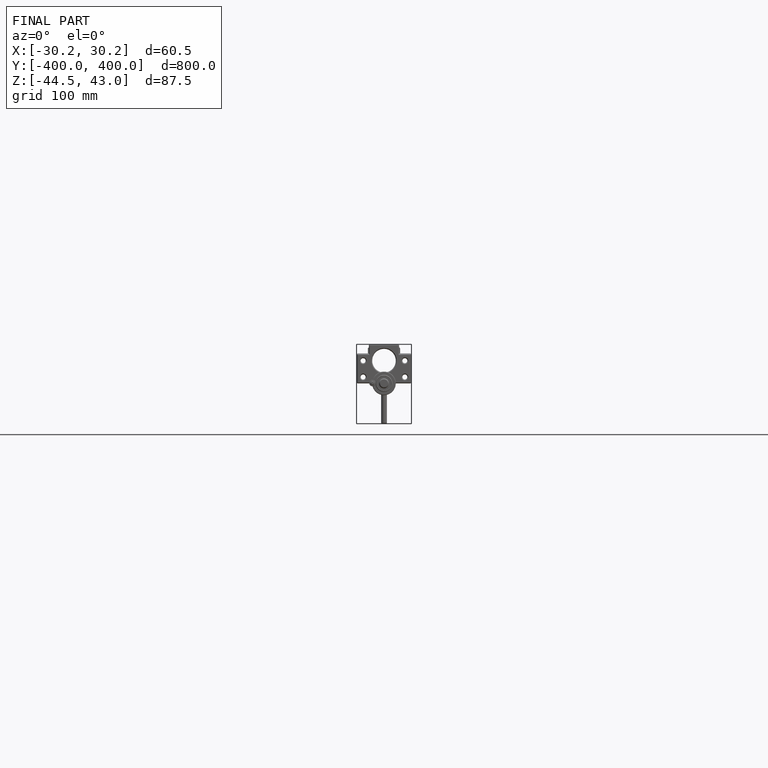
[diagram: finished part — front view with bounding-box wireframe]
